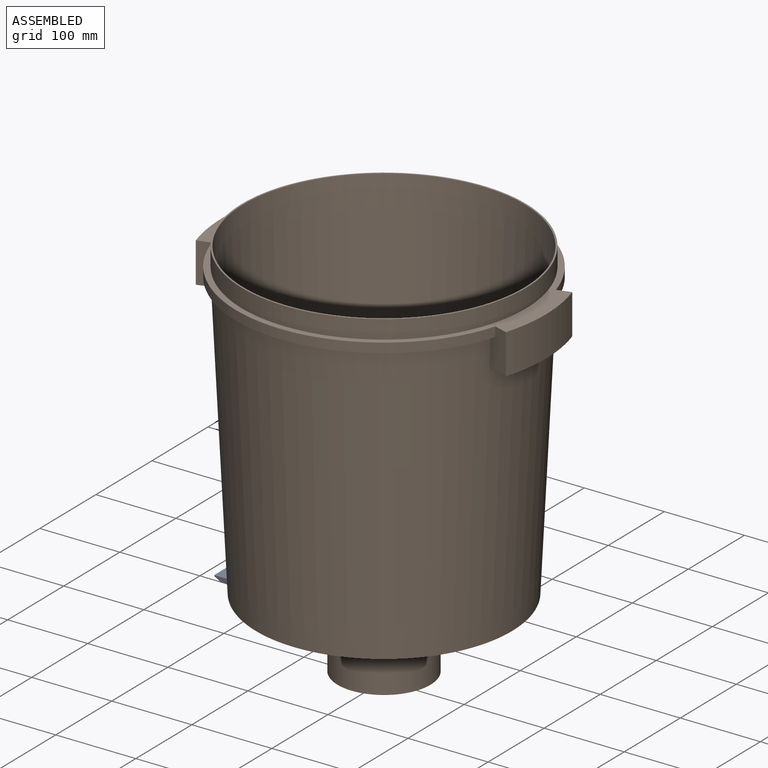
[diagram: assembled view]
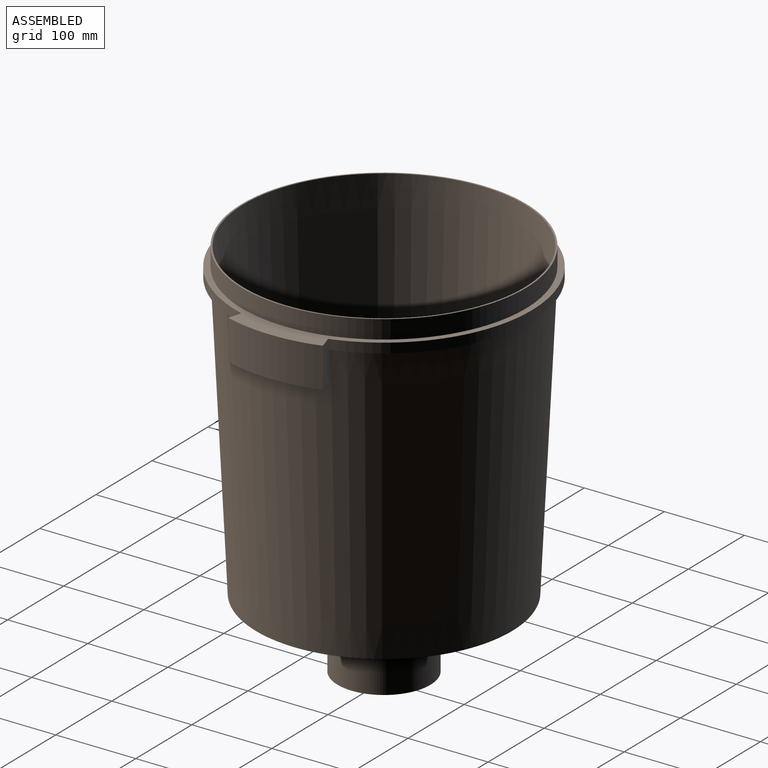
[diagram: assembled view, second angle]
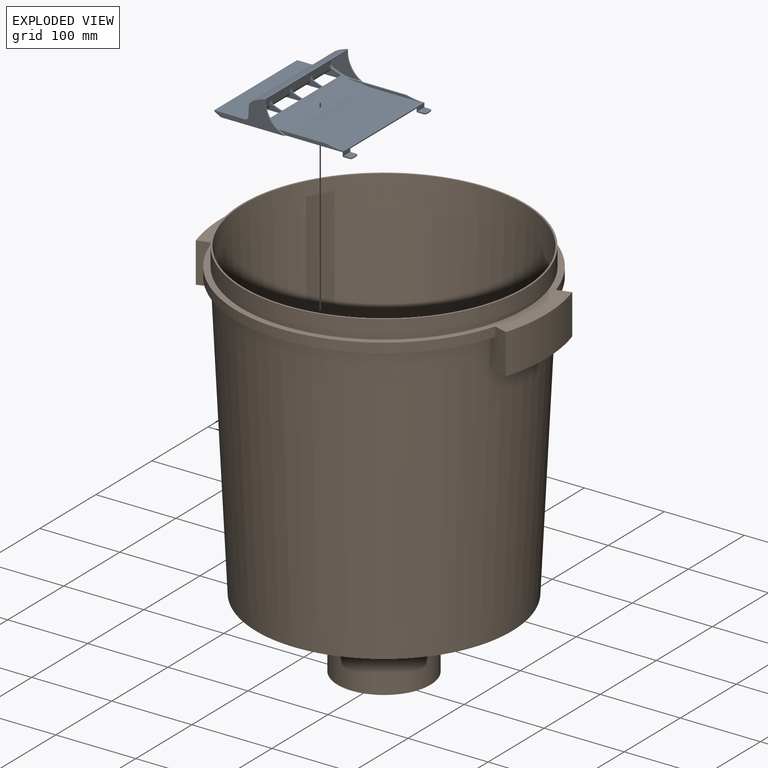
[diagram: exploded view]
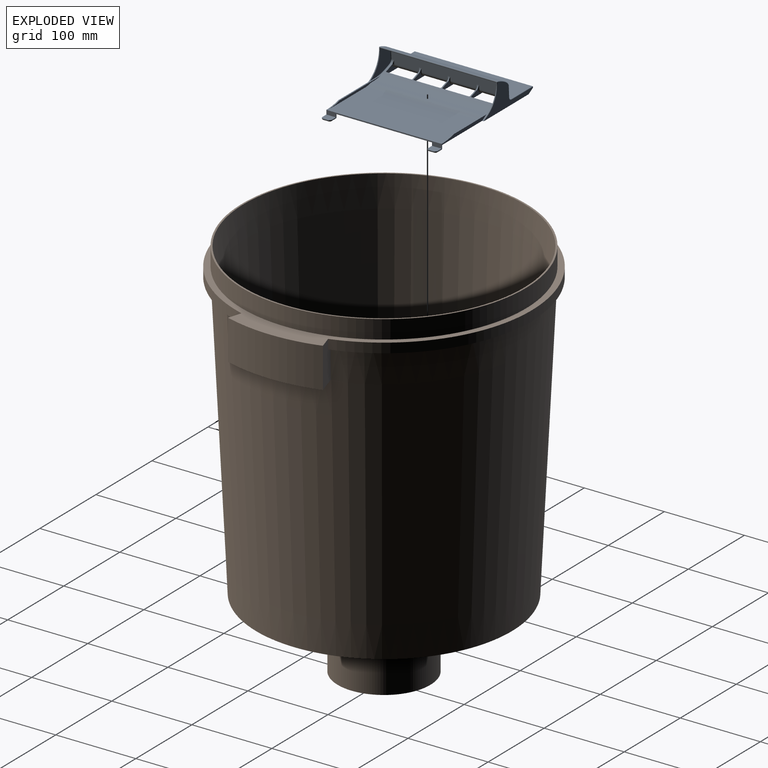
[diagram: exploded view, second angle]
FCSTD DOCUMENT  (FreeCAD 0.21R32532 (Git))
Label: composit_full_size2part_model
License: All rights reserved
LicenseURL: http://en.wikipedia.org/wiki/All_rights_reserved
objects: App::Link×31, Part::FeaturePython×10, Sketcher::SketchObject×6, PartDesign::CoordinateSystem×4, PartDesign::SubShapeBinder×4, PartDesign::Pocket×4, App::DocumentObjectGroup×3, PartDesign::Body×3, PartDesign::Pad×2, App::FeaturePython×1, Part::Feature×1, PartDesign::FeatureBase×1, PartDesign::PolarPattern×1, App::Part×1
note: 42 computed .brp shape members not serialized (recipe doc carries the construction recipe); baked Part::Feature solids carry a one-line shape summary decoded from their .brp
EXTERNAL_REF file=composit_full_size2part.FCStd obj=Local_CS011
EXTERNAL_REF file=composit_full_size2part.FCStd obj=Body
EXTERNAL_REF file=composit_full_size2part.FCStd obj=Local_CS012
EXTERNAL_REF file=composit_full_size2part.FCStd obj=Body001
EXTERNAL_REF file=composit_full_size2part.FCStd obj=DatumPoint005
EXTERNAL_REF file=composit_full_size2part.FCStd obj=Local_CS066
EXTERNAL_REF file=composit_full_size2part.FCStd obj=Body020
EXTERNAL_REF file=basin_big.FCStd obj=Body_7
EXTERNAL_REF file=composit_full_size2part.FCStd obj=Body022
EXTERNAL_REF file=composit_full_size2part.FCStd obj=Local_CS051
EXTERNAL_REF file=composit_full_size2part.FCStd obj=Body019
EXTERNAL_REF file=composit_full_size2part.FCStd obj=Local_CS050
EXTERNAL_REF file=composit_full_size2part.FCStd obj=Local_CS052
EXTERNAL_REF file=composit_full_size2part.FCStd obj=basement_plywood
EXTERNAL_REF file=composit_full_size2part.FCStd obj=LCS_0
EXTERNAL_REF file=hub2108.FCStd obj=Local_CS001
EXTERNAL_REF file=hub2108.FCStd obj=Body
EXTERNAL_REF file=composit_full_size2part.FCStd obj=Local_CS068
EXTERNAL_REF file=hub2108.FCStd obj=Local_CS
EXTERNAL_REF file=composit_full_size2part.FCStd obj=Body042
EXTERNAL_REF file=composit_full_size2part.FCStd obj=Local_CS054
EXTERNAL_REF file=composit_full_size2part.FCStd obj=Local_CS067
EXTERNAL_REF file=composit_full_size2part.FCStd obj=Body028
EXTERNAL_REF file=composit_full_size2part.FCStd obj=Local_CS055
EXTERNAL_REF file=composit_full_size2part.FCStd obj=Local_CS069
EXTERNAL_REF file=composit_full_size2part.FCStd obj=Body029
EXTERNAL_REF file=composit_full_size2part.FCStd obj=Local_CS058
EXTERNAL_REF file=composit_full_size2part.FCStd obj=Local_CS059
EXTERNAL_REF file=composit_full_size2part.FCStd obj=Body034
EXTERNAL_REF file=composit_full_size2part.FCStd obj=Local_CS001
EXTERNAL_REF file=composit_full_size2part.FCStd obj=Local_CS064
EXTERNAL_REF file=composit_full_size2part.FCStd obj=Body041
EXTERNAL_REF file=composit_full_size2part.FCStd obj=Local_CS060
EXTERNAL_REF file=composit_full_size2part.FCStd obj=Local_CS061
EXTERNAL_REF file=composit_full_size2part.FCStd obj=Body033
EXTERNAL_REF file=composit_full_size2part.FCStd obj=Body045
EXTERNAL_REF file=composit_full_size2part.FCStd obj=Body048
EXTERNAL_REF file=composit_full_size2part.FCStd obj=Local_CS070
EXTERNAL_REF file=composit_full_size2part.FCStd obj=Part002
EXTERNAL_REF file=composit_full_size2part.FCStd obj=LCS_024
EXTERNAL_REF file=composit_full_size2part.FCStd obj=plexiglasss_shield
EXTERNAL_REF file=composit_full_size2part.FCStd obj=Local_CS005
EXTERNAL_REF file=ugol90degX40mm.FCStd obj=Local_CS
EXTERNAL_REF file=ugol90degX40mm.FCStd obj=Body
EXTERNAL_REF file=../Ручка-профиль CT2 L60.FCStd obj=Local_CS
EXTERNAL_REF file=../Ручка-профиль CT2 L60.FCStd obj=Body
EXTERNAL_REF file=composit_full_size2part.FCStd obj=Body049
EXTERNAL_REF file=composit_full_size2part.FCStd obj=Body043
EXTERNAL_REF file=composit_full_size2part.FCStd obj=Body026
EXTERNAL_REF file=composit_full_size2part.FCStd obj=Body050
EXTERNAL_REF file=composit_full_size2part.FCStd obj=Body051
EXTERNAL_REF file=composit_full_size2part.FCStd obj=Body054
EXTERNAL_REF file=composit_full_size2part_transport.FCStd obj=Body001
EXTERNAL_REF file=composit_full_size2part_transport.FCStd obj=Body
EXTERNAL_REF file=composit_full_size2part.FCStd obj=Local_CS073
EXTERNAL_REF file=composit_full_size2part.FCStd obj=Body058

FEATURE [PartDesign::CoordinateSystem] LCS_Origin
  AttacherType = Attacher::AttachEngine3D
  MapMode = 2
  Support = -> [X_Axis]
FEATURE [App::DocumentObjectGroup] Constraints
FEATURE [App::FeaturePython] Variables  # WARN: FeaturePython — macro-defined, semantics opaque (R4)
  Type = App::PropertyContainer
FEATURE [App::DocumentObjectGroup] Configurations
FEATURE [App::Link] Body_material_0_30ansi  label="Body_material_0.30ansi"
  AssemblyType = Part::Link
  AttachedBy = #Local_CS011
  AttachedTo = Parent Assembly#LCS_Origin
  LinkPlacement = pos=(0,8.37158,0) rot=(0,0,1;0rad)
  LinkedObject = -> <external composit_full_size2part.FCStd>#Body
  Placement = pos=(0,8.37158,0) rot=(0,0,1;0rad)
  SolverId = Asm4EE
  expr: Placement = LCS_Origin.Placement * AttachmentOffset * composit_full_size2part#Local_CS011.Placement ^ -1
FEATURE [App::Link] Body001_material_0_30ansi  label="Body001_material_0.30ansi"
  AssemblyType = Part::Link
  AttachedBy = #Local_CS012
  AttachedTo = Parent Assembly#LCS_Origin
  AttachmentOffset = pos=(0,0,0) rot=(0,0,1;4.18879rad)
  LinkPlacement = pos=(7.25,-4.18579,0) rot=(0,0,1;4.18879rad)
  LinkedObject = -> <external composit_full_size2part.FCStd>#Body001
  Placement = pos=(7.25,-4.18579,0) rot=(0,0,1;4.18879rad)
  SolverId = Asm4EE
  expr: Placement = LCS_Origin.Placement * AttachmentOffset * composit_full_size2part#Local_CS012.Placement ^ -1
FEATURE [App::Link] hor_amplifier
  AssemblyType = Part::Link
  AttachedBy = #Local_CS066
  AttachedTo = Body_material_0_30ansi#DatumPoint005
  AttachmentOffset = pos=(0,0,0) rot=(1,0,0;4.71239rad)
  LinkPlacement = pos=(1.7e-15,201.803,407.176) rot=(1,0,0;3.19975rad)
  LinkedObject = -> <external composit_full_size2part.FCStd>#Body020
  Placement = pos=(1.7e-15,201.803,407.176) rot=(1,0,0;3.19975rad)
  SolverId = Asm4EE
  expr: Placement = Body_material_0_30ansi.Placement * composit_full_size2part#DatumPoint005.Placement * AttachmentOffset * composit_full_size2part#Local_CS066.Placement ^ -1
FEATURE [PartDesign::CoordinateSystem] Local_CS044
  AttacherType = Attacher::AttachEngine3D
  MapMode = 4
  Placement = pos=(0,0,0) rot=(0.57735,0.57735,0.57735;2.0944rad)
  Support = -> [XY_Plane044]
FEATURE [Part::Feature] Part__Feature  label="module002"
  shape: bbox 170 x 148 x 41.12 mm, 715 faces (baked)
FEATURE [PartDesign::FeatureBase] BaseFeature
  BaseFeature = -> Part__Feature
FEATURE [PartDesign::Body] Body017
  BaseFeature = -> Part__Feature
  Group = -> [BaseFeature,Local_CS044]
  Origin = -> Origin044
  Tip = -> BaseFeature
FEATURE [App::DocumentObjectGroup] Parts
  Group = -> [Body017,Part__Feature]
FEATURE [App::Link] Body024_material_0_30ansi  label="Body024_material_0.30ansi"
  AssemblyType = Part::Link
  AttachedBy = #Local_CS049
  AttachedTo = Parent Assembly#LCS_Origin
  AttachmentOffset = pos=(0,0,3) rot=(0,0,1;-1.0472rad)
  LinkPlacement = pos=(0,0,3) rot=(0,0,1;5.23599rad)
  Placement = pos=(0,0,3) rot=(0,0,1;5.23599rad)
  SolverId = Asm4EE
  expr: Placement = LCS_Origin.Placement * AttachmentOffset * composit_full_size2part#Local_CS049.Placement ^ -1
FEATURE [App::Link] basin
  AssemblyType = Part::Link
  AttachedBy = #LCS_021
  AttachedTo = Parent Assembly#LCS_Origin
  LinkedObject = -> <external basin_big.FCStd>#Body_7
  SolverId = Asm4EE
  expr: LinkedObject = <<basin_big>>#<<basin>>._self
FEATURE [App::Link] basin_limiter_body
  LinkPlacement = pos=(0,0,0) rot=(0,0,1;2.0944rad)
  LinkedObject = -> <external composit_full_size2part.FCStd>#Body022
  Placement = pos=(0,0,0) rot=(0,0,1;2.0944rad)
FEATURE [App::Link] basement_proxy
  AssemblyType = Part::Link
  AttachedBy = #Local_CS051
  AttachedTo = Parent Assembly#LCS_Origin
  AttachmentOffset = pos=(0,0,0) rot=(0,0,1;-3.14159rad)
  LinkPlacement = pos=(0,0,-3) rot=(0,0,1;3.14159rad)
  LinkedObject = -> <external composit_full_size2part.FCStd>#Body019
  Placement = pos=(0,0,-3) rot=(0,0,1;3.14159rad)
  SolverId = Asm4EE
  expr: Placement = LCS_Origin.Placement * AttachmentOffset * composit_full_size2part#Local_CS051.Placement ^ -1
FEATURE [App::Link] basement_plywood
  AssemblyType = Part::Link
  AttachedBy = #Local_CS052
  AttachedTo = basement_proxy#Local_CS050
  AttachmentOffset = pos=(0,0,0) rot=(0,0,1;2.0944rad)
  LinkPlacement = pos=(0,0,-21) rot=(0,0,1;5.23599rad)
  LinkedObject = -> <external composit_full_size2part.FCStd>#basement_plywood
  Placement = pos=(0,0,-21) rot=(0,0,1;5.23599rad)
  SolverId = Asm4EE
  expr: Placement = basement_proxy.Placement * composit_full_size2part#Local_CS050.Placement * AttachmentOffset * composit_full_size2part#Local_CS052.Placement ^ -1
FEATURE [App::Link] hub2108
  AssemblyType = Part::Link
  AttachedBy = #Local_CS001
  AttachedTo = basement_plywood#LCS_0
  LinkPlacement = pos=(0,0,-88) rot=(0,0,1;5.23599rad)
  LinkedObject = -> <external hub2108.FCStd>#Body
  Placement = pos=(0,0,-88) rot=(0,0,1;5.23599rad)
  SolverId = Asm4EE
  expr: Placement = basement_plywood.Placement * composit_full_size2part#LCS_0.Placement * AttachmentOffset * hub2108#Local_CS001.Placement ^ -1
FEATURE [App::Link] basement2_proxy
  AssemblyType = Part::Link
  AttachedBy = #Local_CS068
  AttachedTo = hub2108#Local_CS
  AttachmentOffset = pos=(0,0,0) rot=(0,0,1;1.0472rad)
  LinkPlacement = pos=(0,0,-91) rot=(0,0,1;0rad)
  LinkedObject = -> <external composit_full_size2part.FCStd>#Body042
  Placement = pos=(0,0,-91) rot=(0,0,1;0rad)
  SolverId = Asm4EE
  expr: Placement = hub2108.Placement * hub2108#Local_CS.Placement * AttachmentOffset * composit_full_size2part#Local_CS068.Placement ^ -1
FEATURE [App::Link] plywood_basement_2
  AssemblyType = Part::Link
  AttachedBy = #Local_CS054
  AttachedTo = basement2_proxy#Local_CS067
  LinkPlacement = pos=(0,0,-109) rot=(0,0,1;0rad)
  LinkedObject = -> <external composit_full_size2part.FCStd>#Body028
  Placement = pos=(0,0,-109) rot=(0,0,1;0rad)
  SolverId = Asm4EE
  expr: Placement = basement2_proxy.Placement * composit_full_size2part#Local_CS067.Placement * AttachmentOffset * composit_full_size2part#Local_CS054.Placement ^ -1
FEATURE [App::Link] pillar_material_0_30ansi  label="pillar_material_0.30ansi"
  AssemblyType = Part::Link
  AttachedBy = #Local_CS055
  AttachedTo = basement2_proxy#Local_CS069
  LinkPlacement = pos=(1.705e-13,384,-88) rot=(0,0,1;0rad)
  LinkedObject = -> <external composit_full_size2part.FCStd>#Body029
  Placement = pos=(1.705e-13,384,-88) rot=(0,0,1;0rad)
  SolverId = Asm4EE
  expr: Placement = basement2_proxy.Placement * composit_full_size2part#Local_CS069.Placement * AttachmentOffset * composit_full_size2part#Local_CS055.Placement ^ -1
FEATURE [App::Link] pillar_corner_bottom_material_0_30ansi  label="pillar_corner_bottom_material_0.30ansi"
  AssemblyType = Part::Link
  AttachedBy = #Local_CS058
  AttachedTo = pillar_material_0_30ansi#Local_CS059
  LinkPlacement = pos=(18.3,329.5,-88) rot=(0,0,1;1.5708rad)
  LinkedObject = -> <external composit_full_size2part.FCStd>#Body034
  Placement = pos=(18.3,329.5,-88) rot=(0,0,1;1.5708rad)
  SolverId = Asm4EE
  expr: Placement = pillar_material_0_30ansi.Placement * composit_full_size2part#Local_CS059.Placement * AttachmentOffset * composit_full_size2part#Local_CS058.Placement ^ -1
FEATURE [App::Link] Part
  AssemblyType = Part::Link
  AttachedBy = #Local_CS028
  AttachedTo = Body_material_0_30ansi#Local_CS001
  AttachmentOffset = pos=(0,0,3) rot=(0,0,1;3.14159rad)
  LinkPlacement = pos=(0,181.372,1431) rot=(0,0,1;3.14159rad)
  Placement = pos=(0,181.372,1431) rot=(0,0,1;3.14159rad)
  SolverId = Asm4EE
  expr: Placement = Body_material_0_30ansi.Placement * composit_full_size2part#Local_CS001.Placement * AttachmentOffset * composit_full_size2part#Local_CS028.Placement ^ -1
FEATURE [Part::FeaturePython] Circular_Part  # Draft array (typed FeaturePython)
  AngleStep = 120
  ArrayType = Circular Array
  Axis = -> Z_Axis
  Count = 3
  Index = 1
  PlacementList = 3 placements: [(-1.00974e-28,181.372,1431),(-157.072,-90.6858,1431),(157.072,-90.6858,1431)]
  Placer = pos=(0,0,0) rot=(0,0,1;4.18879rad)
  ScaleList = (3) [(1,1,1),(1,1,1),(1,1,1)]
  Scaler = 1
  ShowElement = false
  SourceObject = -> Part
  expr: .Placer.Rotation.Angle = AngleStep * Index
  expr: AngleStep = 360 / Count
FEATURE [App::Link] Body041_material_0_30ansi  label="Body041_material_0.30ansi"
  AssemblyType = Part::Link
  AttachedBy = #Local_CS064
  AttachedTo = basement2_proxy#Local_CS069
  AttachmentOffset = pos=(0,16.7,514) rot=(0,0,1;4.71239rad)
  LinkPlacement = pos=(1.611e-13,367.3,426) rot=(1,0,0;1.5708rad)
  LinkedObject = -> <external composit_full_size2part.FCStd>#Body041
  Placement = pos=(1.611e-13,367.3,426) rot=(1,0,0;1.5708rad)
  SolverId = Asm4EE
  expr: Placement = basement2_proxy.Placement * composit_full_size2part#Local_CS069.Placement * AttachmentOffset * composit_full_size2part#Local_CS064.Placement ^ -1
FEATURE [App::Link] pillar_corner_top_material_0_30ansi  label="pillar_corner_top_material_0.30ansi"
  AssemblyType = Part::Link
  AttachedBy = #Local_CS061
  AttachedTo = pillar_material_0_30ansi#Local_CS060
  LinkPlacement = pos=(1.696e-13,382,1506) rot=(0,0,1;0rad)
  LinkedObject = -> <external composit_full_size2part.FCStd>#Body033
  Placement = pos=(1.696e-13,382,1506) rot=(0,0,1;0rad)
  SolverId = Asm4EE
  expr: Placement = pillar_material_0_30ansi.Placement * composit_full_size2part#Local_CS060.Placement * AttachmentOffset * composit_full_size2part#Local_CS061.Placement ^ -1
FEATURE [Part::FeaturePython] Circular_pillar_material_0_30ansi  label="Circular_pillar_material_0.30ansi"  # Draft array (typed FeaturePython)
  AngleStep = 120
  ArrayType = Circular Array
  Axis = -> Z_Axis
  Count = 3
  Index = 1
  PlacementList = 3 placements: [(1.7053e-13,384,-88),(-332.554,-192,-88),(332.554,-192,-88)]
  Placer = pos=(0,0,0) rot=(0,0,1;4.18879rad)
  ScaleList = (3) [(1,1,1),(1,1,1),(1,1,1)]
  Scaler = 1
  ShowElement = false
  SourceObject = -> pillar_material_0_30ansi
  expr: .Placer.Rotation.Angle = AngleStep * Index
  expr: AngleStep = 360 / Count
FEATURE [Part::FeaturePython] Circular_pillar_corner_bottom_material_0_30ansi  label="Circular_pillar_corner_bottom_material_0.30ansi"  # Draft array (typed FeaturePython)
  AngleStep = 120
  ArrayType = Circular Array
  Axis = -> Z_Axis
  Count = 3
  Index = 1
  PlacementList = 3 placements: [(18.3,329.5,-88),(-294.505,-148.902,-88),(276.205,-180.598,-88)]
  Placer = pos=(0,0,0) rot=(0,0,1;4.18879rad)
  ScaleList = (3) [(1,1,1),(1,1,1),(1,1,1)]
  Scaler = 1
  ShowElement = false
  SourceObject = -> pillar_corner_bottom_material_0_30ansi
  expr: .Placer.Rotation.Angle = AngleStep * Index
  expr: AngleStep = 360 / Count
FEATURE [Part::FeaturePython] Circular_Body041_material_0_30ansi  label="Circular_Body041_material_0.30ansi"  # Draft array (typed FeaturePython)
  AngleStep = 120
  ArrayType = Circular Array
  Axis = -> Z_Axis
  Count = 3
  Index = 1
  PlacementList = 3 placements: [(1.61069e-13,367.3,426),(-318.091,-183.65,426),(318.091,-183.65,426)]
  Placer = pos=(0,0,0) rot=(0,0,1;4.18879rad)
  ScaleList = (3) [(1,1,1),(1,1,1),(1,1,1)]
  Scaler = 1
  ShowElement = false
  SourceObject = -> Body041_material_0_30ansi
  expr: .Placer.Rotation.Angle = AngleStep * Index
  expr: AngleStep = 360 / Count
FEATURE [Part::FeaturePython] Circular_pillar_corner_top_material_0_30ansi  label="Circular_pillar_corner_top_material_0.30ansi"  # Draft array (typed FeaturePython)
  AngleStep = 120
  ArrayType = Circular Array
  Axis = -> Z_Axis
  Count = 3
  Index = 1
  PlacementList = 3 placements: [(1.69642e-13,382,1506),(-330.822,-191,1506),(330.822,-191,1506)]
  Placer = pos=(0,0,0) rot=(0,0,1;4.18879rad)
  ScaleList = (3) [(1,1,1),(1,1,1),(1,1,1)]
  Scaler = 1
  ShowElement = false
  SourceObject = -> pillar_corner_top_material_0_30ansi
  expr: .Placer.Rotation.Angle = AngleStep * Index
  expr: AngleStep = 360 / Count
FEATURE [App::Link] Body045_material_0_30ansi  label="Body045_material_0.30ansi"
  LinkPlacement = pos=(0,0,1503) rot=(0,0,1;0rad)
  LinkedObject = -> <external composit_full_size2part.FCStd>#Body045
  Placement = pos=(0,0,1503) rot=(0,0,1;0rad)
FEATURE [App::Link] plexiglass_shield
  LinkPlacement = pos=(0,0,383) rot=(0,0,1;0rad)
  LinkedObject = -> <external composit_full_size2part.FCStd>#Body048
  Placement = pos=(0,0,383) rot=(0,0,1;0rad)
FEATURE [App::Link] Part002
  AssemblyType = Part::Link
  AttachedBy = #Local_CS041
  AttachedTo = Body_material_0_30ansi#Local_CS070
  AttachmentOffset = pos=(0,0,0) rot=(0,0,1;1.5708rad)
  LinkPlacement = pos=(14.5,8.37158,410) rot=(0,0,-1;1.0472rad)
  LinkedObject = -> <external composit_full_size2part.FCStd>#Part002
  Placement = pos=(14.5,8.37158,410) rot=(0,0,-1;1.0472rad)
  SolverId = Asm4EE
  expr: Placement = Body_material_0_30ansi.Placement * composit_full_size2part#Local_CS070.Placement * AttachmentOffset ^ -1
FEATURE [Sketcher::SketchObject] Sketch
  FullyConstrained = true
  sketch-geometry (1):
    g0: Circle CenterX=0 CenterY=0 CenterZ=0 NormalX=0 NormalY=0 NormalZ=1 AngleXU=0 Radius=385
  constraints (2):
    c: Coincident(g0,g-1)
    c: Radius(g0) = 385
FEATURE [App::Link] plexiglasss_bottom_shield_material_0_30ansi  label="plexiglasss_bottom_shield_material_0.30ansi"
  AssemblyType = Part::Link
  AttachedBy = #LCS_024
  AttachedTo = Parent Assembly#LCS_Origin
  AttachmentOffset = pos=(0,0,0) rot=(0,0,1;1.0472rad)
  LinkPlacement = pos=(0,0,0) rot=(0,0,1;1.0472rad)
  LinkedObject = -> <external composit_full_size2part.FCStd>#plexiglasss_shield
  Placement = pos=(0,0,0) rot=(0,0,1;1.0472rad)
  SolverId = Asm4EE
  expr: Placement = LCS_Origin.Placement * AttachmentOffset * composit_full_size2part#LCS_024.Placement ^ -1
FEATURE [Part::FeaturePython] Circular_Part002  # Draft array (typed FeaturePython)
  AngleStep = 120
  ArrayType = Circular Array
  Axis = -> Z_Axis
  Count = 3
  Index = 1
  PlacementList = 3 placements: [(14.5,8.37158,410),(-14.5,8.37158,410),(-4.36096e-13,-16.7432,410)]
  Placer = pos=(0,0,0) rot=(0,0,1;4.18879rad)
  ScaleList = (3) [(1,1,1),(1,1,1),(1,1,1)]
  Scaler = 1
  ShowElement = false
  SourceObject = -> Part002
  expr: .Placer.Rotation.Angle = AngleStep * Index
  expr: AngleStep = 360 / Count
FEATURE [Part::FeaturePython] Circular_plexiglasss_bottom_shield_material_0_30ansi  label="Circular_plexiglasss_bottom_shield_material_0.30ansi"  # Draft array (typed FeaturePython)
  AngleStep = 120
  ArrayType = Circular Array
  Axis = -> Z_Axis
  Count = 2
  Index = 1
  PlacementList = 2 placements: [(0,0,0),(0,0,0)]
  Placer = pos=(0,0,0) rot=(0,0,1;2.0944rad)
  ScaleList = (2) [(1,1,1),(1,1,1)]
  Scaler = 1
  ShowElement = false
  SourceObject = -> plexiglasss_bottom_shield_material_0_30ansi
  expr: .Placer.Rotation.Angle = AngleStep * Index
  expr: AngleStep = 240 / Count
FEATURE [App::Link] Body_material_0_30ansi001  label="Body_material_0.30ansi001"
  AssemblyType = Part::Link
  AttachedBy = #Local_CS
  AttachedTo = Body_material_0_30ansi#Local_CS005
  AttachmentOffset = pos=(0,0,0) rot=(0,0,1;3.14159rad)
  LinkPlacement = pos=(14.5,294.372,0) rot=(0,0,-1;4.71239rad)
  LinkedObject = -> <external ugol90degX40mm.FCStd>#Body
  Placement = pos=(14.5,294.372,0) rot=(0,0,-1;4.71239rad)
  SolverId = Asm4EE
  expr: Placement = Body_material_0_30ansi.Placement * composit_full_size2part#Local_CS005.Placement * AttachmentOffset * ugol90degX40mm#Local_CS.Placement ^ -1
FEATURE [Part::FeaturePython] Mirror_Body_material_0_30ansi001  label="Mirror_Body_material_0.30ansi001"  # Draft array (typed FeaturePython)
  ArrayType = Mirror Array
  Axis = -> YZ_Plane
  AxisPlacement = pos=(0,0,0) rot=(1,1,1;2.0944rad)
  Count = 2
  Index = 1
  PlacementList = 2 placements: [(14.5,294.372,-3.54987e-30),(-14.5,294.372,-4.82947e-15)]
  Placer = pos=(588.743,2.79e-14,-29) rot=(0,0,1;3.14159rad)
  ScaleList = (2) [(1,1,1),(-1,-1,-1)]
  Scaler = -1
  ShowElement = false
  SourceObject = -> Body_material_0_30ansi001
  expr: .Placer.Base = .Placer.Rotation * minvert(.AxisPlacement) * .SourceObject.Placement.Base * -2 * (Index % 2)
  expr: .Placer.Rotation.Angle = 180 * (Index % 2)
  expr: Scaler = 1 - 2 * (Index % 2)
FEATURE [Part::FeaturePython] Circular_Mirror_Body_material_0_30ansi001  label="Circular_Mirror_Body_material_0.30ansi001"  # Draft array (typed FeaturePython)
  AngleStep = 120
  ArrayType = Circular Array
  Axis = -> Z_Axis
  Count = 3
  Index = 1
  PlacementList = 3 placements: [(0,0,0),(0,0,0),(0,0,0)]
  Placer = pos=(0,0,0) rot=(0,0,1;4.18879rad)
  ScaleList = (3) [(1,1,1),(1,1,1),(1,1,1)]
  Scaler = 1
  ShowElement = false
  SourceObject = -> Mirror_Body_material_0_30ansi001
  expr: .Placer.Rotation.Angle = AngleStep * Index
  expr: AngleStep = 360 / Count
FEATURE [App::Link] Body  label="handle"
  AssemblyType = Part::Link
  AttachedBy = #Local_CS
  AttachedTo = Body024_material_0_30ansi#Local_CS071
  AttachmentOffset = pos=(0,268,1.5) rot=(0,0,1;1.5708rad)
  LinkPlacement = pos=(294.41,-122.73,271) rot=(0.706137,0.052363,0.706137;3.24622rad)
  LinkedObject = -> <external ../Ручка-профиль CT2 L60.FCStd>#Body
  Placement = pos=(294.41,-122.73,271) rot=(0.706137,0.052363,0.706137;3.24622rad)
  SolverId = Asm4EE
  expr: .AttachmentOffset.Base.y = <<composit_full_size2part>>#Binder173.Placement.Base.z
  expr: Placement = Body024_material_0_30ansi.Placement * composit_full_size2part#Local_CS071.Placement * AttachmentOffset * __________________________CT2_L60#Local_CS.Placement ^ -1
FEATURE [App::Link] tech_plexiglass_shield_material_0_30ansi  label="tech_plexiglass_shield_material_0.30ansi"
  LinkPlacement = pos=(0,0,0) rot=(0,0,1;5.23599rad)
  LinkedObject = -> <external composit_full_size2part.FCStd>#Body049
  Placement = pos=(0,0,0) rot=(0,0,1;5.23599rad)
FEATURE [App::Link] tech_bottom_proxy
  LinkPlacement = pos=(0,0,0) rot=(0,0,1;5.23599rad)
  LinkedObject = -> <external composit_full_size2part.FCStd>#Body043
  Placement = pos=(0,0,0) rot=(0,0,1;5.23599rad)
FEATURE [App::Link] tech_bottom
  LinkPlacement = pos=(0,0,0) rot=(0,0,1;5.23599rad)
  LinkedObject = -> <external composit_full_size2part.FCStd>#Body026
  Placement = pos=(0,0,0) rot=(0,0,1;5.23599rad)
FEATURE [App::Link] Body050_material_0_30ansi  label="Body050_material_0.30ansi"
  AttachmentOffset = pos=(0,0,1600) rot=(0,0,1;0rad)
  LinkPlacement = pos=(0,0,1508) rot=(0,0,1;0rad)
  LinkedObject = -> <external composit_full_size2part.FCStd>#Body050
  Placement = pos=(0,0,1508) rot=(0,0,1;0rad)
FEATURE [Part::FeaturePython] Circular_Body024_material_0_30ansi  label="Circular_Body024_material_0.30ansi"  # Draft array (typed FeaturePython)
  AngleStep = 120
  ArrayType = Circular Array
  Axis = -> Z_Axis
  Count = 2
  Index = 1
  PlacementList = 2 placements: [(1.97215e-31,1.97215e-31,3),(-8.44624e-16,3.15218e-15,3)]
  Placer = pos=(0,0,0) rot=(0,0,1;2.0944rad)
  ScaleList = (2) [(1,1,1),(1,1,1)]
  Scaler = 1
  ShowElement = false
  SourceObject = -> Body024_material_0_30ansi
  expr: .Placer.Rotation.Angle = AngleStep * Index
  expr: AngleStep = 120 deg
FEATURE [App::Link] hat1_material_0_30ansi  label="hat1_material_0.30ansi"
  LinkPlacement = pos=(0,0,1585) rot=(0,0,1;0rad)
  LinkedObject = -> <external composit_full_size2part.FCStd>#Body051
  Placement = pos=(0,0,1585) rot=(0,0,1;0rad)
FEATURE [App::Link] Body051_material_0_30ansi  label="Body051_material_0.30ansi"
  LinkPlacement = pos=(0,0,1508) rot=(0,0,1;2.0944rad)
  LinkedObject = -> <external composit_full_size2part.FCStd>#Body054
  Placement = pos=(0,0,1508) rot=(0,0,1;2.0944rad)
FEATURE [App::Link] top
  LinkPlacement = pos=(0,0,1600) rot=(0,0,1;0rad)
  LinkedObject = -> <external composit_full_size2part_transport.FCStd>#Body001
  Placement = pos=(0,0,1600) rot=(0,0,1;0rad)
FEATURE [App::Link] bottom
  LinkPlacement = pos=(0,0,-159) rot=(0,0,1;0rad)
  LinkedObject = -> <external composit_full_size2part_transport.FCStd>#Body
  Placement = pos=(0,0,-159) rot=(0,0,1;0rad)
FEATURE [App::Link] Body058
  AttachedBy = #Local_CS073
  AttachedTo = basement2_proxy#Local_CS069
  AttachmentOffset = pos=(0,0,471) rot=(0,0,1;3.14159rad)
  LinkPlacement = pos=(1.705e-13,384,383) rot=(0,0,1;0rad)
  LinkedObject = -> <external composit_full_size2part.FCStd>#Body058
  Placement = pos=(1.705e-13,384,383) rot=(0,0,1;0rad)
  SolverId = Asm4EE
  expr: Placement = basement2_proxy.Placement * composit_full_size2part#Local_CS069.Placement * AttachmentOffset * composit_full_size2part#Local_CS073.Placement ^ -1
FEATURE [PartDesign::CoordinateSystem] LCS_0
  AttacherType = Attacher::AttachEngine3D
  MapMode = 2
  Support = -> [X_Axis045]
FEATURE [PartDesign::SubShapeBinder] Binder
  BindCopyOnChange = 0
  BindMode = 0
  ClaimChildren = false
  Context = -> Model [top001.Binder.]
  Fuse = false
  MakeFace = true
  OffsetFill = false
  OffsetIntersection = false
  OffsetJoinType = 0
  OffsetOpenResult = false
  PartialLoad = false
  Placement = pos=(0,0,100) rot=(0,0,1;0rad)
  Relative = true
  Support = -> [Circular_Part[0.Part_2.top_bottom_part.Pocket082.Face5]]
  _Version = 2
FEATURE [Sketcher::SketchObject] Sketch001
  AttachmentOffset = pos=(0,0,100) rot=(0,0,1;0rad)
  ExternalGeometry = -> [Binder]
  FullyConstrained = true
  MapMode = 5
  Placement = pos=(0,0,100) rot=(0,0,1;0rad)
  Support = -> [XY_Plane045]
  sketch-geometry (5):
    g0: LineSegment StartX=44.1 StartY=313.322 StartZ=0 EndX=-44.1 EndY=313.322 EndZ=0
    g1: LineSegment StartX=-44.1 StartY=313.322 StartZ=0 EndX=-44.1 EndY=320.176 EndZ=0
    g2: LineSegment StartX=-44.1 StartY=320.176 StartZ=0 EndX=44.1 EndY=320.176 EndZ=0
    g3: LineSegment StartX=44.1 StartY=320.176 StartZ=0 EndX=44.1 EndY=313.322 EndZ=0
    g4: GeomPoint X=0 Y=316.749 Z=0
  constraints (13):
    c: Coincident(g0,g1)
    c: Coincident(g1,g2)
    c: Coincident(g2,g3)
    c: Coincident(g3,g0)
    c: Horizontal(g0)
    c: Horizontal(g2)
    c: Vertical(g1)
    c: Vertical(g3)
    c: PointOnObject(g4,g-2)
    c: Symmetric(g0,g2,g4)
    c: DistanceY(g-4,g0) = 5
    c: DistanceX(g-5,g0) = 5
    c: DistanceY(g-3,g2) = 5
FEATURE [Sketcher::SketchObject] Sketch002
  ExternalGeometry = -> [Sketch001]
  FullyConstrained = true
  MapMode = 5
  Support = -> [XY_Plane045]
FEATURE [Sketcher::SketchObject] Sketch003
  AttachmentOffset = pos=(0,0,100) rot=(0,0,1;0rad)
  ExternalGeometry = -> [Sketch001]
  FullyConstrained = true
  MapMode = 5
  Placement = pos=(0,0,100) rot=(0,0,1;0rad)
  Support = -> [XY_Plane045]
  sketch-geometry (5):
    g0: LineSegment StartX=-44.1 StartY=0 StartZ=0 EndX=-44.1 EndY=313.322 EndZ=0
    g1: LineSegment StartX=-44.1 StartY=313.322 StartZ=0 EndX=44.1 EndY=313.322 EndZ=0
    g2: LineSegment StartX=44.1 StartY=313.322 StartZ=0 EndX=44.1 EndY=0 EndZ=0
    g3: LineSegment StartX=44.1 StartY=0 StartZ=0 EndX=-44.1 EndY=0 EndZ=0
    g4: GeomPoint X=-6.59e-14 Y=156.661 Z=0
  constraints (12):
    c: Coincident(g0,g1)
    c: Coincident(g1,g2)
    c: Coincident(g2,g3)
    c: Coincident(g3,g0)
    c: Horizontal(g1)
    c: Horizontal(g3)
    c: Vertical(g0)
    c: Vertical(g2)
    c: Symmetric(g1,g0,g4)
    c: PointOnObject(g4,g-2)
    c: Coincident(g1,g-3)
    c: PointOnObject(g2,g-1)
FEATURE [PartDesign::CoordinateSystem] LCS_001
  AttacherType = Attacher::AttachEngine3D
  MapMode = 2
  Support = -> [X_Axis046]
FEATURE [PartDesign::SubShapeBinder] Binder001
  BindCopyOnChange = 0
  BindMode = 0
  ClaimChildren = false
  Context = -> Model [bottom001.Binder001.]
  Fuse = false
  MakeFace = true
  Offset = 10
  OffsetFill = false
  OffsetIntersection = false
  OffsetJoinType = 0
  OffsetOpenResult = false
  PartialLoad = false
  Placement = pos=(0,0,100) rot=(0,0,1;1.0472rad)
  Relative = false
  Support = -> [basement_proxy[Binder094.Populate005.]]
  _Version = 2
FEATURE [Sketcher::SketchObject] Sketch004
  ExternalGeometry = -> [Binder001]
  FullyConstrained = true
  MapMode = 5
  Support = -> [XY_Plane046]
  sketch-geometry (15):
    g0: LineSegment StartX=-116.703 StartY=393.865 StartZ=0 EndX=-399.448 EndY=-95.8649 EndZ=0
    g1: LineSegment StartX=-282.746 StartY=-298 StartZ=0 EndX=282.746 EndY=-298 EndZ=0
    g2: LineSegment StartX=399.448 StartY=-95.8649 StartZ=0 EndX=116.703 EndY=393.865 EndZ=0
    g3: LineSegment StartX=-116.703 StartY=393.865 StartZ=0 EndX=116.703 EndY=393.865 EndZ=0
    g4: LineSegment StartX=399.448 StartY=-95.8649 StartZ=0 EndX=282.746 EndY=-298 EndZ=0
    g5: LineSegment StartX=-282.746 StartY=-298 StartZ=0 EndX=-399.448 EndY=-95.8649 EndZ=0
    g6: LineSegment StartX=-399.448 StartY=-95.8649 StartZ=0 EndX=-516.151 EndY=-298 EndZ=0
    g7: LineSegment StartX=-516.151 StartY=-298 StartZ=0 EndX=-282.746 EndY=-298 EndZ=0
    g8: LineSegment StartX=282.746 StartY=-298 StartZ=0 EndX=516.151 EndY=-298 EndZ=0
    g9: LineSegment StartX=516.151 StartY=-298 StartZ=0 EndX=399.448 EndY=-95.8649 EndZ=0
    g10: LineSegment StartX=116.703 StartY=393.865 StartZ=0 EndX=4.832e-13 EndY=596 EndZ=0
    g11: LineSegment StartX=4.832e-13 StartY=596 StartZ=0 EndX=-116.703 EndY=393.865 EndZ=0
    g12: LineSegment StartX=-516.151 StartY=-298 StartZ=0 EndX=-4.547e-13 EndY=-7.958e-13 EndZ=0
    g13: LineSegment StartX=4.832e-13 StartY=596 StartZ=0 EndX=-4.547e-13 EndY=-7.958e-13 EndZ=0
    g14: LineSegment StartX=-4.547e-13 StartY=-7.958e-13 StartZ=0 EndX=516.151 EndY=-298 EndZ=0
  constraints (39):
    c: Horizontal(g1)
    c: Horizontal(g3)
    c: Coincident(g2,g3)
    c: Coincident(g0,g3)
    c: Coincident(g1,g4)
    c: Coincident(g2,g4)
    c: Coincident(g1,g5)
    c: Coincident(g0,g5)
    c: Equal(g1,g2)
    c: Equal(g2,g0)
    c: Coincident(g0,g6)
    c: Coincident(g6,g7)
    c: Coincident(g7,g1)
    c: Horizontal(g7)
    c: Coincident(g1,g8)
    c: Horizontal(g8)
    c: Coincident(g8,g9)
    c: Coincident(g9,g2)
    c: Coincident(g2,g10)
    c: PointOnObject(g10,g-2)
    c: Coincident(g10,g11)
    c: Coincident(g11,g0)
    c: Parallel(g10,g2)
    c: Parallel(g6,g0)
    c: Parallel(g9,g2)
    c: Equal(g8,g9)
    c: Equal(g9,g7)
    c: Equal(g7,g6)
    c: Equal(g6,g11)
    c: Equal(g11,g10)
    c: Coincident(g12,g6)
    c: Coincident(g12,g-1)
    c: Coincident(g13,g10)
    c: Coincident(g13,g12)
    c: Coincident(g14,g12)
    c: Coincident(g14,g8)
    c: Equal(g12,g13)
    c: Distance(g-3,g1) = 30
    c: Distance(g-4,g3) = 30
FEATURE [PartDesign::Pad] Pad001
  Direction = (0,0,1)
  Length = 100
  Length2 = 10
  Profile = -> Sketch004
  ReferenceAxis = -> Sketch004 [N_Axis]
  Type = 0
FEATURE [PartDesign::Pocket] Pocket
  BaseFeature = -> Pad001
  Direction = (0,0,-1)
  Length = 30
  Length2 = 5
  Profile = -> Binder001
  Type = 0
FEATURE [PartDesign::SubShapeBinder] Binder002
  BindCopyOnChange = 0
  BindMode = 0
  ClaimChildren = false
  Context = -> Model [bottom001.Binder002.]
  Fuse = false
  MakeFace = true
  OffsetFill = false
  OffsetIntersection = false
  OffsetJoinType = 0
  OffsetOpenResult = false
  PartialLoad = false
  Relative = true
  Support = -> [basement_proxy[Binder101.]]
  _Version = 2
FEATURE [Sketcher::SketchObject] Sketch005
  ExternalGeometry = -> [Binder002]
  FullyConstrained = true
  MapMode = 5
  Support = -> [XY_Plane046]
  sketch-geometry (6):
    g0: Circle CenterX=4.05e-14 CenterY=309.171 CenterZ=0 NormalX=0 NormalY=0 NormalZ=1 AngleXU=0 Radius=65
    g1: Circle CenterX=267.75 CenterY=-154.585 CenterZ=0 NormalX=0 NormalY=0 NormalZ=1 AngleXU=0 Radius=65
    g2: Circle CenterX=-267.75 CenterY=-154.585 CenterZ=0 NormalX=0 NormalY=0 NormalZ=1 AngleXU=0 Radius=65
    g3: LineSegment StartX=-267.75 StartY=-154.585 StartZ=0 EndX=0 EndY=0 EndZ=0
    g4: LineSegment StartX=0 StartY=0 StartZ=0 EndX=267.75 EndY=-154.585 EndZ=0
    g5: LineSegment StartX=0 StartY=0 StartZ=0 EndX=4.05e-14 EndY=309.171 EndZ=0
  constraints (14):
    c: Symmetric(g-3,g-4,g0)
    c: Diameter(g0) = 130
    c: Coincident(g3,g2)
    c: Coincident(g3,g-1)
    c: Coincident(g3,g4)
    c: Coincident(g4,g1)
    c: Coincident(g3,g5)
    c: Coincident(g5,g0)
    c: Equal(g3,g4)
    c: Equal(g4,g5)
    c: Angle(g4,g5) = 2.0944
    c: Angle(g5,g3) = 2.0944
    c: Equal(g0,g1)
    c: Equal(g1,g2)
FEATURE [PartDesign::Pocket] Pocket001
  BaseFeature = -> Pocket
  Direction = (0,0,-1)
  Length = 5
  Length2 = 5
  Profile = -> Sketch005
  ReferenceAxis = -> Sketch005 [N_Axis]
  Reversed = true
  Type = 1
FEATURE [PartDesign::Body] bottom001
  Group = -> [LCS_001,Binder001,Sketch004,Pad001,Pocket,Binder002,Sketch005,Pocket001]
  Origin = -> Origin046
  Tip = -> Pocket001
FEATURE [PartDesign::SubShapeBinder] Binder003
  BindCopyOnChange = 0
  BindMode = 0
  ClaimChildren = false
  Context = -> Model [top001.Binder003.]
  Fuse = false
  MakeFace = true
  OffsetFill = false
  OffsetIntersection = false
  OffsetJoinType = 0
  OffsetOpenResult = false
  PartialLoad = false
  Relative = true
  Support = -> [bottom001[Pad001.Sketch004.]]
  _Version = 2
FEATURE [PartDesign::Pad] Pad
  Direction = (0,0,1)
  Length = 100
  Length2 = 10
  Profile = -> Binder003
  Type = 0
FEATURE [PartDesign::Pocket] Pocket002
  BaseFeature = -> Pad
  Direction = (0,0,-1)
  Length = 40
  Length2 = 5
  Profile = -> Sketch001
  ReferenceAxis = -> Sketch001 [N_Axis]
  Type = 0
FEATURE [PartDesign::Pocket] Pocket003
  BaseFeature = -> Pocket002
  Direction = (0,0,-1)
  Length = 70
  Length2 = 5
  Profile = -> Sketch003
  ReferenceAxis = -> Sketch003 [N_Axis]
  Type = 0
FEATURE [PartDesign::PolarPattern] PolarPattern
  Angle = 360
  Axis = -> Z_Axis045
  BaseFeature = -> Pocket003
  Occurrences = 3
  Originals = -> [Pocket002,Pocket003]
  Refine = true
FEATURE [PartDesign::Body] top001
  Group = -> [LCS_0,Sketch001,Binder,Sketch002,Sketch003,Binder003,Pad,Pocket002,Pocket003,PolarPattern]
  Origin = -> Origin045
  Tip = -> PolarPattern
FEATURE [App::Part] Model
  AssemblyType = Part::Link
  Group = -> [LCS_Origin,Constraints,Variables,Configurations,Body_material_0_30ansi,Body001_material_0_30ansi,hor_amplifier,Body024_material_0_30ansi,basin,basin_limiter_body,basement_proxy,basement_plywood,hub2108,basement2_proxy,plywood_basement_2,pillar_material_0_30ansi,pillar_corner_bottom_material_0_30ansi,Part,Circular_Part,Body041_material_0_30ansi,pillar_corner_top_material_0_30ansi,+26 more]
  Origin = -> Origin
  Type = Assembly

RESOLVED EXTERNAL PARTS (link-assembly join: the EXTERNAL_REF files above that resolve inside this repo's crawl, each included once):
---- part basin_big.FCStd = doc fcstd_3c131922ee46 ----
FCSTD DOCUMENT  (FreeCAD 1.1R38827 (Git))
Label: basin_big
License: All rights reserved
LicenseURL: http://en.wikipedia.org/wiki/All_rights_reserved
objects: Part::FeaturePython×4, Sketcher::SketchObject×2, PartDesign::Revolution×2, App::AnnotationLabel×2, PartDesign::Mirrored×1, PartDesign::CoordinateSystem×1, PartDesign::Body×1, Spreadsheet::Sheet×1, App::DocumentObjectGroup×1
note: 18 computed .brp shape members not serialized (recipe doc carries the construction recipe); baked Part::Feature solids carry a one-line shape summary decoded from their .brp

FEATURE [Sketcher::SketchObject] Sketch067  label="basin_sketch"
  ArcFitTolerance = 0
  AttachmentSupport = -> [XZ_Plane034]
  FullyConstrained = true
  MakeInternals = false
  MapMode = 5
  Placement = pos=(0,0,0) rot=(1,0,0;1.5708rad)
  sketch-geometry (10):
    g0: LineSegment StartX=0 StartY=0 StartZ=0 EndX=160 EndY=0 EndZ=0
    g1: LineSegment StartX=160 StartY=0 StartZ=0 EndX=177.5 EndY=357 EndZ=0
    g2: LineSegment StartX=177.5 StartY=357 StartZ=0 EndX=185 EndY=357 EndZ=0
    g3: LineSegment StartX=185 StartY=357 StartZ=0 EndX=185 EndY=369 EndZ=0
    g4: LineSegment StartX=185 StartY=369 StartZ=0 EndX=177.5 EndY=369 EndZ=0
    g5: LineSegment StartX=177.5 StartY=369 StartZ=0 EndX=177.5 EndY=392 EndZ=0
    g6: LineSegment StartX=177.5 StartY=392 StartZ=0 EndX=175.5 EndY=392 EndZ=0
    g7: LineSegment StartX=0 StartY=2 StartZ=0 EndX=0 EndY=0 EndZ=0
    g8: LineSegment StartX=175.5 StartY=392 StartZ=0 EndX=158 EndY=2 EndZ=0
    g9: LineSegment StartX=158 StartY=2 StartZ=0 EndX=0 EndY=2 EndZ=0
  constraints (29):
    c: Coincident(g-1,g0)
    c: PointOnObject(g0,g-1)
    c: Coincident(g0,g1)
    c: Coincident(g1,g2)
    c: Horizontal(g2)
    c: Coincident(g2,g3)
    c: Vertical(g3)
    c: Coincident(g3,g4)
    c: Horizontal(g4)
    c: Coincident(g4,g5)
    c: Coincident(g5,g6)
    c: Horizontal(g6)
    c: Coincident(g7,g0)
    c: DistanceX(g0) = 160  'basin_bottom_r'
    c: DistanceX(g1) = 177.5
    c: Vertical(g4,g1)
    c: Vertical(g5,g4)
    c: DistanceX(g2) = 185
    c: DistanceY(g1) = 357
    c: DistanceY(g2,g3) = 12
    c: Coincident(g9,g8)
    c: Horizontal(g9)
    c: DistanceY(g0,g9) = 2
    c: DistanceX(g8,g0) = 2
    c: DistanceX(g8,g5) = 2
    c: Coincident(g6,g8)
    c: DistanceY(g6) = 392
    c: Coincident(g7,g9)
    c: Vertical(g7)
FEATURE [Sketcher::SketchObject] Sketch068
  ArcFitTolerance = 0
  AttachmentSupport = -> [XZ_Plane034]
  FullyConstrained = true
  MakeInternals = false
  MapMode = 5
  Placement = pos=(0,0,0) rot=(1,0,0;1.5708rad)
  expr: Constraints[13] = Sketch067.Constraints.basin_bottom_r
  expr: Constraints[14] = Sketch067.Constraints[14]
  expr: Constraints[17] = Sketch067.Constraints[17]
  expr: Constraints[18] = Sketch067.Constraints[18]
  expr: Constraints[19] = Sketch067.Constraints[19]
  expr: Constraints[22] = Sketch067.Constraints[22]
  expr: Constraints[23] = Sketch067.Constraints[23]
  expr: Constraints[24] = Sketch067.Constraints[24]
  expr: Constraints[26] = Sketch067.Constraints[26]
  sketch-geometry (14):
    g0: LineSegment [constr] StartX=0 StartY=0 StartZ=0 EndX=160 EndY=0 EndZ=0
    g1: LineSegment [constr] StartX=160 StartY=0 StartZ=0 EndX=177.5 EndY=357 EndZ=0
    g2: LineSegment StartX=177.5 StartY=357 StartZ=0 EndX=185 EndY=357 EndZ=0
    g3: LineSegment StartX=185 StartY=357 StartZ=0 EndX=185 EndY=369 EndZ=0
    g4: LineSegment [constr] StartX=185 StartY=369 StartZ=0 EndX=177.5 EndY=369 EndZ=0
    g5: LineSegment [constr] StartX=177.5 StartY=369 StartZ=0 EndX=177.5 EndY=392 EndZ=0
    g6: LineSegment [constr] StartX=177.5 StartY=392 StartZ=0 EndX=175.5 EndY=392 EndZ=0
    g7: LineSegment [constr] StartX=0 StartY=2 StartZ=0 EndX=0 EndY=0 EndZ=0
    g8: LineSegment [constr] StartX=175.5 StartY=392 StartZ=0 EndX=158 EndY=2 EndZ=0
    g9: LineSegment [constr] StartX=158 StartY=2 StartZ=0 EndX=0 EndY=2 EndZ=0
    g10: LineSegment StartX=185 StartY=369 StartZ=0 EndX=202.5 EndY=369 EndZ=0
    g11: LineSegment StartX=202.5 StartY=369 StartZ=0 EndX=202.5 EndY=319 EndZ=0
    g12: LineSegment StartX=202.5 StartY=319 StartZ=0 EndX=175.637 EndY=319 EndZ=0
    g13: LineSegment StartX=175.637 StartY=319 StartZ=0 EndX=177.5 EndY=357 EndZ=0
  constraints (40):
    c: Coincident(g-1,g0)
    c: PointOnObject(g0,g-1)
    c: Coincident(g0,g1)
    c: Coincident(g1,g2)
    c: Horizontal(g2)
    c: Coincident(g2,g3)
    c: Vertical(g3)
    c: Coincident(g3,g4)
    c: Horizontal(g4)
    c: Coincident(g4,g5)
    c: Coincident(g5,g6)
    c: Horizontal(g6)
    c: Coincident(g7,g0)
    c: DistanceX(g0) = 160
    c: DistanceX(g1) = 177.5
    c: Vertical(g4,g1)
    c: Vertical(g5,g4)
    c: DistanceX(g2) = 185
    c: DistanceY(g1) = 357
    c: DistanceY(g2,g3) = 12
    c: Coincident(g9,g8)
    c: Horizontal(g9)
    c: DistanceY(g0,g9) = 2
    c: DistanceX(g8,g0) = 2
    c: DistanceX(g8,g5) = 2
    c: Coincident(g6,g8)
    c: DistanceY(g6) = 392
    c: Coincident(g7,g9)
    c: Vertical(g7)
    c: Coincident(g10,g3)
    c: Horizontal(g10)
    c: Coincident(g11,g10)
    c: Vertical(g11)
    c: Coincident(g12,g11)
    c: PointOnObject(g12,g1)
    c: Horizontal(g12)
    c: Coincident(g13,g12)
    c: Coincident(g13,g2)
    c: DistanceX(g10) = 202.5
    c: DistanceY(g11,g10) = 50
FEATURE [PartDesign::Revolution] Revolution
  Angle = 360
  Angle2 = 60
  Axis = (0,2e-16,1)
  Base = (0,0,0)
  Placement = pos=(0,0,0) rot=(1,0,0;1.5708rad)
  Profile = -> Sketch067
  ReferenceAxis = -> Sketch067 [V_Axis]
  Reversed = true
  Suppressed = false
  Type = 0
FEATURE [PartDesign::Revolution] Revolution001
  Angle = 34
  Angle2 = 60
  Axis = (0,2e-16,1)
  Base = (0,0,0)
  BaseFeature = -> Revolution
  Midplane = true
  Placement = pos=(0,0,0) rot=(1,0,0;1.5708rad)
  Profile = -> Sketch068
  ReferenceAxis = -> Sketch068 [V_Axis]
  Reversed = true
  Suppressed = false
  Type = 0
FEATURE [PartDesign::Mirrored] Mirrored023
  BaseFeature = -> Revolution001
  MirrorPlane = -> Sketch068 [V_Axis]
  Originals = -> [Revolution001]
  Placement = pos=(0,0,0) rot=(1,0,0;1.5708rad)
  Suppressed = false
  TransformMode = 0
FEATURE [PartDesign::CoordinateSystem] LCS_021  label="base_LCS"
  AttacherType = Attacher::AttachEngine3D
  AttachmentSupport = -> [X_Axis034]
  MapMode = 2
FEATURE [PartDesign::Body] Body_7  label="basin"
  AllowCompound = false
  Group = -> [LCS_021,Sketch067,Revolution,Sketch068,Revolution001,Mirrored023]
  Origin = -> Origin034
  Tip = -> Mirrored023
FEATURE [Spreadsheet::Sheet] Spreadsheet  label="Properties"
  cells = B2(height)==392 mm; C2(bottom_d)==320 mm; D2(max_r)==405 mm
FEATURE [Part::FeaturePython] aCircle  # WARN: FeaturePython — macro-defined, semantics opaque (R4)
FEATURE [Part::FeaturePython] Radius  # WARN: FeaturePython — macro-defined, semantics opaque (R4)
FEATURE [App::AnnotationLabel] MeasureLbl
  BasePosition = (160,0,0)
  LabelText = R = 160.00 mm
  TextPosition = (0,0,0)
FEATURE [Part::FeaturePython] aCircle001  # WARN: FeaturePython — macro-defined, semantics opaque (R4)
FEATURE [Part::FeaturePython] Radius001  # WARN: FeaturePython — macro-defined, semantics opaque (R4)
FEATURE [App::AnnotationLabel] MeasureLbl001
  BasePosition = (193.652,-59.2053,369)
  LabelText = R = 202.50 mm
  TextPosition = (0,0,0)
FEATURE [App::DocumentObjectGroup] Measures
  Group = -> [aCircle,Radius,MeasureLbl,aCircle001,Radius001,MeasureLbl001]
---- part composit_full_size2part_transport.FCStd = doc fcstd_9bc325590ef6 ----
FCSTD DOCUMENT  (FreeCAD 0.22R34291 (Git))
Label: composit_full_size2part_transport
License: All rights reserved
LicenseURL: http://en.wikipedia.org/wiki/All_rights_reserved
objects: Part::FeaturePython×12, Path::FeaturePython×11, App::DocumentObjectGroup×9, PartDesign::SubShapeBinder×8, Sketcher::SketchObject×5, PartDesign::Pocket×4, App::FeaturePython×3, PartDesign::Pad×2, PartDesign::Body×2, PartDesign::PolarPattern×1, PartDesign::Mirrored×1, Part::Part2DObjectPython×1
note: 47 computed .brp shape members not serialized (recipe doc carries the construction recipe); baked Part::Feature solids carry a one-line shape summary decoded from their .brp
EXTERNAL_REF file=composit_full_size2part.FCStd obj=Populate006
EXTERNAL_REF file=composit_full_size2part.FCStd obj=Body051
EXTERNAL_REF file=composit_full_size2part.FCStd obj=Body042
EXTERNAL_REF file=composit_full_size2part.FCStd obj=Compound020

FEATURE [PartDesign::SubShapeBinder] Binder
  BindCopyOnChange = 0
  BindMode = 0
  ClaimChildren = false
  Context = -> Body [Binder.]
  Fuse = false
  MakeFace = true
  Offset = 10
  OffsetFill = false
  OffsetIntersection = false
  OffsetJoinType = 0
  OffsetOpenResult = false
  PartialLoad = false
  Placement = pos=(0,0,100) rot=(0,0,1;0rad)
  Relative = true
  Support = -> [<external composit_full_size2part.FCStd>#Populate006]
  _Version = 2
  expr: Support = <<composit_full_size2part>>#<<basement2_sketch>>._self
FEATURE [Sketcher::SketchObject] Sketch
  ExternalGeometry = -> [Binder]
  FullyConstrained = true
  MapMode = 5
  Support = -> [XY_Plane]
  sketch-geometry (15):
    g0: Circle CenterX=2.772e-13 CenterY=6.49e-14 CenterZ=0 NormalX=0 NormalY=0 NormalZ=1 AngleXU=0 Radius=394.5
    g1: Circle CenterX=-2.772e-13 CenterY=6.49e-14 CenterZ=0 NormalX=0 NormalY=0 NormalZ=1 AngleXU=0 Radius=394.5
    g2: LineSegment StartX=2.772e-13 StartY=6.49e-14 StartZ=0 EndX=-2.772e-13 EndY=6.49e-14 EndZ=0
    g3: LineSegment StartX=-2.772e-13 StartY=6.49e-14 StartZ=0 EndX=2.197e-13 EndY=-1.81e-13 EndZ=0
    g4: LineSegment StartX=2.197e-13 StartY=-1.81e-13 StartZ=0 EndX=2.772e-13 EndY=6.49e-14 EndZ=0
    g5: LineSegment StartX=2.772e-13 StartY=6.49e-14 StartZ=0 EndX=0 EndY=0 EndZ=0
    g6: LineSegment StartX=0 StartY=0 StartZ=0 EndX=-2.772e-13 EndY=6.49e-14 EndZ=0
    g7: LineSegment StartX=0 StartY=0 StartZ=0 EndX=2.197e-13 EndY=-1.81e-13 EndZ=0
    g8: LineSegment StartX=400 StartY=-414.5 StartZ=0 EndX=400 EndY=-159.603 EndZ=0
    g9: LineSegment StartX=400 StartY=-159.603 StartZ=0 EndX=-400 EndY=-159.603 EndZ=0
    g10: LineSegment StartX=-400 StartY=-159.603 StartZ=0 EndX=-400 EndY=-414.5 EndZ=0
    g11: LineSegment StartX=-400 StartY=-414.5 StartZ=0 EndX=400 EndY=-414.5 EndZ=0
    g12: GeomPoint X=0 Y=-287.052 Z=0
    g13: LineSegment StartX=-351.245 StartY=-179.603 StartZ=0 EndX=-351.245 EndY=-159.603 EndZ=0
    g14: LineSegment StartX=-2.772e-13 StartY=-394.5 StartZ=0 EndX=-2.772e-13 EndY=-414.5 EndZ=0
  constraints (38):
    c: Coincident(g2,g0)
    c: Coincident(g2,g1)
    c: Horizontal(g2)
    c: Coincident(g2,g3)
    c: Coincident(g3,g-3)
    c: Coincident(g3,g4)
    c: Coincident(g4,g2)
    c: Coincident(g5,g0)
    c: Coincident(g5,g-1)
    c: Coincident(g5,g6)
    c: Coincident(g6,g1)
    c: Coincident(g5,g7)
    c: Coincident(g7,g3)
    c: Equal(g6,g5)
    c: Equal(g5,g7)
    c: Equal(g2,g3)
    c: Equal(g1,g-3)
    c: Equal(g-3,g0)
    c: Coincident(g8,g9)
    c: Coincident(g9,g10)
    c: Coincident(g10,g11)
    c: Coincident(g11,g8)
    c: Horizontal(g9)
    c: Horizontal(g11)
    c: Vertical(g8)
    c: Vertical(g10)
    c: Symmetric(g9,g8,g12)
    c: PointOnObject(g12,g-2)
    c: Coincident(g13,g-3)
    c: PointOnObject(g13,g9)
    c: Vertical(g13)
    c: PointOnObject(g14,g1)
    c: PointOnObject(g14,g11)
    c: Vertical(g14)
    c: PointOnObject(g1,g14)
    c: Equal(g14,g13)
    c: DistanceX(g9) = -400
    c: DistanceY(g14,g14) = 20
FEATURE [PartDesign::Pad] Pad
  Direction = (0,0,1)
  Length = 100
  Length2 = 10
  Profile = -> Sketch
  ReferenceAxis = -> Sketch [N_Axis]
  Type = 0
FEATURE [PartDesign::Pocket] Pocket
  BaseFeature = -> Pad
  Direction = (0,0,-1)
  Length = 30
  Length2 = 5
  Profile = -> Binder
  Type = 0
FEATURE [PartDesign::SubShapeBinder] Binder001
  BindCopyOnChange = 0
  BindMode = 0
  ClaimChildren = false
  Context = -> Body001 [Binder001.]
  Fuse = false
  MakeFace = true
  OffsetFill = false
  OffsetIntersection = false
  OffsetJoinType = 0
  OffsetOpenResult = false
  PartialLoad = false
  Relative = true
  Support = -> [<external composit_full_size2part.FCStd>#Body051[Binder186.]]
  _Version = 2
FEATURE [PartDesign::SubShapeBinder] Binder002
  BindCopyOnChange = 0
  BindMode = 0
  ClaimChildren = false
  Context = -> Body001 [Binder002.]
  Fuse = false
  MakeFace = true
  OffsetFill = false
  OffsetIntersection = false
  OffsetJoinType = 0
  OffsetOpenResult = false
  PartialLoad = false
  Placement = pos=(0,0,100) rot=(0,0,1;0rad)
  Relative = true
  Support = -> [Binder001]
  _Version = 2
FEATURE [PartDesign::SubShapeBinder] Binder003
  BindCopyOnChange = 0
  BindMode = 0
  ClaimChildren = false
  Context = -> Body [Binder003.]
  Fuse = false
  MakeFace = true
  OffsetFill = false
  OffsetIntersection = false
  OffsetJoinType = 0
  OffsetOpenResult = false
  PartialLoad = false
  Relative = true
  Support = -> [<external composit_full_size2part.FCStd>#Body042[Hole029.Binder146.]]
  _Version = 2
FEATURE [Sketcher::SketchObject] Sketch001
  ExternalGeometry = -> [Binder003]
  FullyConstrained = true
  MapMode = 5
  Support = -> [XY_Plane]
  sketch-geometry (1):
    g0: Circle CenterX=9.7e-15 CenterY=333 CenterZ=0 NormalX=0 NormalY=0 NormalZ=1 AngleXU=0 Radius=65
  constraints (2):
    c: Diameter(g0) = 130
    c: Symmetric(g-3,g-4,g0)
FEATURE [PartDesign::Pocket] Pocket001
  BaseFeature = -> Pocket
  Direction = (0,0,-1)
  Length = 5
  Length2 = 5
  Profile = -> Sketch001
  ReferenceAxis = -> Sketch001 [N_Axis]
  Reversed = true
  Type = 1
FEATURE [PartDesign::PolarPattern] PolarPattern
  Angle = 360
  Axis = -> Z_Axis
  BaseFeature = -> Pocket001
  Mode = 0
  Occurrences = 3
  Offset = 120
  Originals = -> [Pocket001]
FEATURE [PartDesign::Body] Body  label="bottom"
  Group = -> [Binder,Sketch,Pad,Pocket,Sketch001,Pocket001,PolarPattern,Binder003]
  Origin = -> Origin
  Tip = -> PolarPattern
FEATURE [PartDesign::SubShapeBinder] Binder004
  BindCopyOnChange = 0
  BindMode = 0
  ClaimChildren = false
  Context = -> Body001 [Binder004.]
  Fuse = false
  MakeFace = true
  Offset = 5
  OffsetFill = false
  OffsetIntersection = false
  OffsetJoinType = 0
  OffsetOpenResult = false
  PartialLoad = false
  Placement = pos=(0,0,100) rot=(0,0,1;0rad)
  Relative = true
  Support = -> [Binder001]
  _Version = 2
FEATURE [PartDesign::SubShapeBinder] Binder005
  BindCopyOnChange = 0
  BindMode = 0
  ClaimChildren = false
  Context = -> Body001 [Binder005.]
  Fuse = false
  MakeFace = true
  OffsetFill = false
  OffsetIntersection = false
  OffsetJoinType = 0
  OffsetOpenResult = false
  PartialLoad = false
  Placement = pos=(0,0,100) rot=(0,0,1;0rad)
  Relative = true
  Support = -> [<external composit_full_size2part.FCStd>#Compound020]
  _Version = 2
  expr: Support = <<composit_full_size2part>>#<<plexiglass_shield_2d>>._self
FEATURE [Sketcher::SketchObject] Sketch003
  AttachmentOffset = pos=(0,0,100) rot=(0,0,1;0rad)
  ExternalGeometry = -> [Binder005]
  FullyConstrained = true
  MapMode = 5
  Placement = pos=(0,0,100) rot=(0,0,1;0rad)
  Support = -> [XY_Plane001]
  sketch-geometry (6):
    g0: ArcOfCircle CenterX=153.653 CenterY=-71.9686 CenterZ=0 NormalX=0 NormalY=0 NormalZ=1 AngleXU=0 Radius=215.948 StartAngle=5.75959 EndAngle=6.28319
    g1: ArcOfCircle CenterX=1.35601e-11 CenterY=15.6832 CenterZ=0 NormalX=0 NormalY=0 NormalZ=1 AngleXU=0 Radius=369.601 StartAngle=0 EndAngle=1.5708
    g2: LineSegment StartX=369.601 StartY=-71.9686 StartZ=0 EndX=369.601 EndY=15.6832 EndZ=0
    g3: LineSegment StartX=379.601 StartY=-34.6481 StartZ=0 EndX=379.601 EndY=0 EndZ=0
    g4: LineSegment StartX=340.67 StartY=-179.943 StartZ=0 EndX=326.27 EndY=-204.884 EndZ=0
    g5: LineSegment StartX=326.27 StartY=-204.884 StartZ=0 EndX=0 EndY=-204.884 EndZ=0
  constraints (17):
    c: Coincident(g0,g-5)
    c: Horizontal(g1,g1)
    c: Coincident(g2,g1)
    c: Vertical(g2)
    c: Tangent(g2,g0) = -1.5708
    c: Vertical(g3)
    c: Tangent(g3,g-5) = -1.5708
    c: PointOnObject(g3,g-1)
    c: Distance(g3,g2) = 10
    c: Perpendicular(g1,g-2) = 4.71239
    c: PointOnObject(g-8,g1)
    c: Tangent(g0,g-4)
    c: Coincident(g4,g0)
    c: Coincident(g4,g-3)
    c: Coincident(g5,g4)
    c: PointOnObject(g5,g-2)
    c: Horizontal(g5)
FEATURE [Sketcher::SketchObject] Sketch002
  ExternalGeometry = -> [Sketch003]
  FullyConstrained = true
  MapMode = 5
  Support = -> [XY_Plane001]
  sketch-geometry (5):
    g0: LineSegment StartX=-395 StartY=410 StartZ=0 EndX=-395 EndY=-250 EndZ=0
    g1: LineSegment StartX=-395 StartY=-250 StartZ=0 EndX=395 EndY=-250 EndZ=0
    g2: LineSegment StartX=395 StartY=-250 StartZ=0 EndX=395 EndY=410 EndZ=0
    g3: LineSegment StartX=395 StartY=410 StartZ=0 EndX=-395 EndY=410 EndZ=0
    g4: GeomPoint X=0 Y=80 Z=0
  constraints (13):
    c: Coincident(g0,g1)
    c: Coincident(g1,g2)
    c: Coincident(g2,g3)
    c: Coincident(g3,g0)
    c: Horizontal(g1)
    c: Horizontal(g3)
    c: Vertical(g0)
    c: Vertical(g2)
    c: Symmetric(g1,g0,g4)
    c: PointOnObject(g4,g-2)
    c: DistanceX(g3,g3) = 790
    c: DistanceY(g2,g2) = 660
    c: DistanceY(g4) = 80
FEATURE [PartDesign::SubShapeBinder] Binder006
  BindCopyOnChange = 0
  BindMode = 0
  ClaimChildren = false
  Context = -> Body001 [Binder006.]
  Fuse = false
  MakeFace = true
  Offset = 7.5
  OffsetFill = false
  OffsetIntersection = false
  OffsetJoinType = 0
  OffsetOpenResult = false
  PartialLoad = false
  Relative = true
  Support = -> [Sketch003]
  _Version = 2
FEATURE [PartDesign::Pad] Pad001
  Direction = (0,0,1)
  Length = 100
  Length2 = 10
  Profile = -> Sketch002
  ReferenceAxis = -> Sketch002 [N_Axis]
  Type = 0
FEATURE [PartDesign::Pocket] Pocket002
  BaseFeature = -> Pad001
  Direction = (0,0,-1)
  Length = 50
  Length2 = 5
  Profile = -> Binder004
  Type = 0
  expr: Profile = Binder004._self
FEATURE [PartDesign::Pocket] Pocket003
  BaseFeature = -> Pocket002
  Direction = (0,0,-1)
  Length = 50
  Length2 = 5
  Profile = -> Binder006
  Type = 0
FEATURE [PartDesign::Mirrored] Mirrored
  BaseFeature = -> Pocket003
  MirrorPlane = -> YZ_Plane001
  Originals = -> [Pocket003]
  Refine = true
FEATURE [PartDesign::Body] Body001  label="top"
  Group = -> [Sketch002,Pad001,Binder001,Binder002,Pocket002,Binder004,Binder005,Sketch003,Binder006,Pocket003,Mirrored]
  Origin = -> Origin001
  Tip = -> Mirrored
FEATURE [App::FeaturePython] SetupSheet  # Path/CAM operation (typed FeaturePython)
  ClearanceHeightExpression = OpStockZMax+SetupSheet.ClearanceHeightOffset
  ClearanceHeightOffset = 5
  CoolantMode = 0
  CoolantModes = None | Flood | Mist
  FinalDepthExpression = OpFinalDepth
  HorizRapid = 0
  ProfileDirection = 1
  ProfileprocessCircles = true
  ProfileprocessHoles = true
  ProfileprocessPerimeter = true
  SafeHeightExpression = OpStockZMax+SetupSheet.SafeHeightOffset
  SafeHeightOffset = 3
  StartDepthExpression = OpStartDepth
  StepDownExpression = OpToolDiameter
  VertRapid = 0
FEATURE [Part::FeaturePython] Clone  label="Model-bottom"  # Draft clone (typed FeaturePython)
  AttacherType = Attacher::AttachEngine3D
  Fuse = false
  Objects = -> [Body]
  PathResource = Model
  Placement = pos=(400,418,0) rot=(0,0,1;3.14159rad)
  Scale = (1,1,1)
FEATURE [App::DocumentObjectGroup] Model
  Group = -> [Clone]
FEATURE [Part::FeaturePython] ToolBit001  label="10mm Endmill"  # Path/CAM toolbit (typed FeaturePython)
  BitPropertyNames = Chipload | CuttingEdgeHeight | Diameter | Flutes | Length | Material | ShankDiameter | SpindleDirection
  BitShape = <path>
  Chipload = 0
  CuttingEdgeHeight = 80
  Diameter = 15
  File = <userpath>/.local/share/FreeCAD/Macro/Bit/10mm_Endmill.fctb
  Flutes = 0
  Length = 131
  Material = 0
  ShankDiameter = 10
  ShapeName = endmill
  SpindleDirection = 0
FEATURE [Path::FeaturePython] _0mm_Endmill  label="10mm Endmill001"  # Path/CAM operation (typed FeaturePython)
  HorizFeed = 51.6667
  HorizRapid = 0
  SpindleDir = 0
  SpindleSpeed = 18000
  Tool = -> ToolBit001
  ToolNumber = 2
  VertFeed = 16.6667
  VertRapid = 0
  expr: HorizRapid = SetupSheet.HorizRapid
  expr: VertRapid = SetupSheet.VertRapid
FEATURE [App::DocumentObjectGroup] Tools
  Group = -> [_0mm_Endmill]
FEATURE [Path::FeaturePython] Pocket_Shape  # Path/CAM operation (typed FeaturePython)
  Active = true
  AreaParams:
    Tolerance = 1e-07
    FitArcs = True
    Simplify = False
    CleanDistance = 0.0
    Accuracy = 0.01
    Unit = 1.0
    MinArcPoints = 4
    MaxArcPoints = 100
    ClipperScale = 10000000.0
    Fill = 0
    Coplanar = 0
    Reorient = True
    Outline = False
    Explode = False
    OpenMode = 0
    Deflection = 0.01
    SubjectFill = 0
    ClipFill = 0
    Offset = 0.0
    ExtraPass = 0
    Stepover = 0.0
    LastStepover = 0.0
    JoinType = 0
    EndType = 0
    MiterLimit = 2.0
    RoundPrecision = 0.0
    PocketMode = 2
    ToolRadius = 7.5
    PocketExtraOffset = 0.0
    PocketStepover = 10.5
    PocketLastStepover = 0.0
    FromCenter = True
    Angle = 45.0
    AngleShift = 0.0
    Shift = 0.0
    Thicken = False
    SectionCount = -1
    Stepdown = 1.0
    SectionOffset = 0.0
    SectionTolerance = 1e-07
    SectionMode = 2
    Project = False
  Base = -> [Clone]
  ClearanceHeight = 106
  CoolantMode = 0
  CutMode = 0
  CycleTime = 00:00:06
  ExtensionCorners = true
  ExtensionLengthDefault = 7.5
  ExtraOffset = 0
  FinalDepth = 70
  FinishDepth = 0
  KeepToolDown = true
  MinTravel = false
  OffsetPattern = 1
  OpFinalDepth = 70
  OpStartDepth = 101
  OpStockZMax = 101
  OpStockZMin = 0
  OpToolDiameter = 15
  PathParams:
    orientation = 1
    feedrate = 51.666666666666664
    feedrate_v = 16.666666666666668
    verbose = True
    resume_height = 104.00000000000006
    retraction = 106.00000000000006
    return_end = True
    preamble = False
    threshold = 15.007499999999999
  PocketLastStepOver = 0
  RestMachiningRegionsNeedRecompute = true
  SafeHeight = 104
  SplitArcs = false
  StartAt = 0
  StartDepth = 101
  StartPoint = (0,0,0)
  StepDown = 200
  StepOver = 70
  ToolController = -> _0mm_Endmill
  UseOutline = true
  UseRestMachining = false
  UseStartPoint = false
  ZigZagAngle = 45
  expr: ClearanceHeight = OpStockZMax + SetupSheet.ClearanceHeightOffset
  expr: ExtensionLengthDefault = OpToolDiameter / 2
  expr: FinalDepth = OpFinalDepth
  expr: SafeHeight = OpStockZMax + SetupSheet.SafeHeightOffset
  expr: StartDepth = OpStartDepth
  expr: StepDown = 200 mm
FEATURE [Path::FeaturePython] Profile  # Path/CAM operation (typed FeaturePython)
  Active = true
  AreaParams:
    Tolerance = 1e-07
    FitArcs = True
    Simplify = False
    CleanDistance = 0.0
    Accuracy = 0.01
    Unit = 1.0
    MinArcPoints = 4
    MaxArcPoints = 100
    ClipperScale = 10000000.0
    Fill = 0
    Coplanar = 0
    Reorient = True
    Outline = False
    Explode = False
    OpenMode = 0
    Deflection = 0.01
    SubjectFill = 0
    ClipFill = 0
    Offset = -7.5
    ExtraPass = 0
    Stepover = 0.0
    LastStepover = 0.0
    JoinType = 0
    EndType = 0
    MiterLimit = 2.0
    RoundPrecision = 0.0
    PocketMode = 0
    ToolRadius = 1.0
    PocketExtraOffset = 0.0
    PocketStepover = 0.0
    PocketLastStepover = 0.0
    FromCenter = False
    Angle = 45.0
    AngleShift = 0.0
    Shift = 0.0
    Thicken = False
    SectionCount = -1
    Stepdown = 1.0
    SectionOffset = 0.0
    SectionTolerance = 1e-07
    SectionMode = 2
    Project = False
  Base = -> [Clone]
  ClearanceHeight = 106
  CoolantMode = 0
  CycleTime = 00:00:06
  Direction = 1
  FinalDepth = 0
  HandleMultipleFeatures = 0
  JoinType = 0
  MiterLimit = 0.1
  OffsetExtra = 0
  OpFinalDepth = 0
  OpStartDepth = 101
  OpStockZMax = 101
  OpStockZMin = 0
  OpToolDiameter = 15
  PathParams = {'orientation': 1, 'feedrate': 51.666666666666664, 'feedrate_v': 16.666666666666668, 'verbose': True, 'resume_height': 104.0, 'retraction': 106.0, 'return_end': True, 'preamble': False, 'start': Vector (145.12166664296072, 537.7739463196152, 106.0)}
  SafeHeight = 104
  Side = 0
  SplitArcs = false
  StartDepth = 101
  StartPoint = (0,0,0)
  StepDown = 200
  ToolController = -> _0mm_Endmill
  UseComp = true
  UseStartPoint = false
  processCircles = true
  processHoles = true
  processPerimeter = false
  expr: ClearanceHeight = OpStockZMax + SetupSheet.ClearanceHeightOffset
  expr: FinalDepth = OpFinalDepth
  expr: SafeHeight = OpStockZMax + SetupSheet.SafeHeightOffset
  expr: StartDepth = OpStartDepth
  expr: StepDown = 200 mm
FEATURE [Path::FeaturePython] Profile001  # Path/CAM operation (typed FeaturePython)
  Active = true
  AreaParams:
    Tolerance = 1e-07
    FitArcs = True
    Simplify = False
    CleanDistance = 0.0
    Accuracy = 0.01
    Unit = 1.0
    MinArcPoints = 4
    MaxArcPoints = 100
    ClipperScale = 10000000.0
    Fill = 0
    Coplanar = 0
    Reorient = True
    Outline = False
    Explode = False
    OpenMode = 0
    Deflection = 0.01
    SubjectFill = 0
    ClipFill = 0
    Offset = 7.5
    ExtraPass = 0
    Stepover = 0.0
    LastStepover = 0.0
    JoinType = 0
    EndType = 0
    MiterLimit = 2.0
    RoundPrecision = 0.0
    PocketMode = 0
    ToolRadius = 1.0
    PocketExtraOffset = 0.0
    PocketStepover = 0.0
    PocketLastStepover = 0.0
    FromCenter = False
    Angle = 45.0
    AngleShift = 0.0
    Shift = 0.0
    Thicken = False
    SectionCount = -1
    Stepdown = 1.0
    SectionOffset = 0.0
    SectionTolerance = 1e-07
    SectionMode = 2
    Project = False
  ClearanceHeight = 106
  CoolantMode = 0
  CycleTime = 00:01:37
  Direction = 1
  FinalDepth = 0
  HandleMultipleFeatures = 0
  JoinType = 0
  MiterLimit = 0.1
  OffsetExtra = 0
  OpFinalDepth = 0
  OpStartDepth = 101
  OpStockZMax = 101
  OpStockZMin = 0
  OpToolDiameter = 15
  PathParams = {'orientation': 0, 'feedrate': 51.666666666666664, 'feedrate_v': 16.666666666666668, 'verbose': True, 'resume_height': 104.0, 'retraction': 106.0, 'return_end': True, 'preamble': False}
  SafeHeight = 104
  Side = 0
  SplitArcs = false
  StartDepth = 101
  StartPoint = (0,0,0)
  StepDown = 200
  ToolController = -> _0mm_Endmill
  UseComp = true
  UseStartPoint = false
  processCircles = true
  processHoles = true
  processPerimeter = true
  expr: ClearanceHeight = OpStockZMax + SetupSheet.ClearanceHeightOffset
  expr: FinalDepth = OpFinalDepth
  expr: SafeHeight = OpStockZMax + SetupSheet.SafeHeightOffset
  expr: StartDepth = OpStartDepth
  expr: StepDown = 200 mm
FEATURE [App::DocumentObjectGroup] Operations
  Group = -> [Pocket_Shape,Profile,Profile001]
FEATURE [Part::FeaturePython] Stock001  # WARN: FeaturePython — macro-defined, semantics opaque (R4)
  Base = -> Model
  ExtXneg = 1
  ExtXpos = 1
  ExtYneg = 1
  ExtYpos = 1
  ExtZneg = 0
  ExtZpos = 1
  Placement = pos=(62.75,-62.75,0) rot=(0,0,1;0rad)
  StockType = FromBase
FEATURE [Path::FeaturePython] Job  # Path/CAM operation (typed FeaturePython)
  CycleTime = 00:01:49
  Fixtures = G54
  GeometryTolerance = 0.01
  JobType = 0
  LastPostProcessDate = 2023-04-07 21:15:26.521219
  LastPostProcessOutput = <userpath>/56D3-E9D0/1.tap
  Model = -> Model
  Operations = -> Operations
  OrderOutputBy = 0
  PostProcessor = 1
  PostProcessorOutputFile = %d.%j.tap
  SetupSheet = -> SetupSheet
  SplitOutput = false
  Stock = -> Stock001
  Tools = -> Tools
FEATURE [App::FeaturePython] SetupSheet001  # Path/CAM operation (typed FeaturePython)
  ClearanceHeightExpression = OpStockZMax+SetupSheet001.ClearanceHeightOffset
  ClearanceHeightOffset = 5
  CoolantMode = 0
  CoolantModes = None | Flood | Mist
  FinalDepthExpression = OpFinalDepth
  HorizRapid = 0
  ProfileDirection = 1
  ProfileprocessCircles = true
  ProfileprocessHoles = true
  ProfileprocessPerimeter = true
  SafeHeightExpression = OpStockZMax+SetupSheet001.SafeHeightOffset
  SafeHeightOffset = 3
  StartDepthExpression = OpStartDepth
  StepDownExpression = OpToolDiameter
  VertRapid = 0
FEATURE [Part::FeaturePython] Clone001  label="Model-top"  # Draft clone (typed FeaturePython)
  AttacherType = Attacher::AttachEngine3D
  Fuse = false
  Objects = -> [Body001]
  PathResource = Model
  Placement = pos=(399.601,946,0) rot=(0,0,1;0rad)
  Scale = (1,1,1)
FEATURE [App::DocumentObjectGroup] Model001
  Group = -> [Clone001]
FEATURE [Part::FeaturePython] Stock  # WARN: FeaturePython — macro-defined, semantics opaque (R4)
  Base = -> Model001
  ExtXneg = 1
  ExtXpos = 1
  ExtYneg = 1
  ExtYpos = 1
  ExtZneg = 0
  ExtZpos = 1
  Placement = pos=(-63.017,63.017,0) rot=(0,0,1;0rad)
  StockType = FromBase
FEATURE [Part::FeaturePython] ToolBit002  label="10mm Endmill002"  # Path/CAM toolbit (typed FeaturePython)
  BitPropertyNames = Chipload | CuttingEdgeHeight | Diameter | Flutes | Length | Material | ShankDiameter | SpindleDirection
  BitShape = <path>
  Chipload = 0
  CuttingEdgeHeight = 80
  Diameter = 15
  File = <userpath>/.local/share/FreeCAD/Macro/Bit/10mm_Endmill.fctb
  Flutes = 0
  Length = 131
  Material = 0
  ShankDiameter = 10
  ShapeName = endmill
  SpindleDirection = 0
FEATURE [Path::FeaturePython] _0mm_Endmill002  label="10mm Endmill003"  # Path/CAM operation (typed FeaturePython)
  HorizFeed = 51.6667
  HorizRapid = 0
  SpindleDir = 0
  SpindleSpeed = 18000
  Tool = -> ToolBit002
  ToolNumber = 2
  VertFeed = 16.6667
  VertRapid = 0
  expr: HorizRapid = SetupSheet001.HorizRapid
  expr: VertRapid = SetupSheet001.VertRapid
FEATURE [App::DocumentObjectGroup] Tools001
  Group = -> [_0mm_Endmill002]
FEATURE [Path::FeaturePython] Profile002  # Path/CAM operation (typed FeaturePython)
  Active = true
  AreaParams:
    Tolerance = 1e-07
    FitArcs = True
    Simplify = False
    CleanDistance = 0.0
    Accuracy = 0.01
    Unit = 1.0
    MinArcPoints = 4
    MaxArcPoints = 100
    ClipperScale = 10000000.0
    Fill = 0
    Coplanar = 0
    Reorient = True
    Outline = False
    Explode = False
    OpenMode = 0
    Deflection = 0.01
    SubjectFill = 0
    ClipFill = 0
    Offset = 7.5
    ExtraPass = 0
    Stepover = 0.0
    LastStepover = 0.0
    JoinType = 0
    EndType = 0
    MiterLimit = 2.0
    RoundPrecision = 0.0
    PocketMode = 0
    ToolRadius = 1.0
    PocketExtraOffset = 0.0
    PocketStepover = 0.0
    PocketLastStepover = 0.0
    FromCenter = False
    Angle = 45.0
    AngleShift = 0.0
    Shift = 0.0
    Thicken = False
    SectionCount = -1
    Stepdown = 1.0
    SectionOffset = 0.0
    SectionTolerance = 1e-07
    SectionMode = 2
    Project = False
  ClearanceHeight = 106
  CoolantMode = 0
  CycleTime = 00:02:44
  Direction = 1
  FinalDepth = 0
  HandleMultipleFeatures = 0
  JoinType = 0
  MiterLimit = 0.1
  OffsetExtra = 0
  OpFinalDepth = 0
  OpStartDepth = 101
  OpStockZMax = 101
  OpStockZMin = 0
  OpToolDiameter = 15
  PathParams:
    orientation = 0
    feedrate = 51.666666666666664
    feedrate_v = 16.666666666666668
    verbose = True
    resume_height = 104.00000000000001
    retraction = 106.00000000000001
    return_end = True
    preamble = False
  SafeHeight = 104
  Side = 0
  SplitArcs = false
  StartDepth = 101
  StartPoint = (0,0,0)
  StepDown = 52
  ToolController = -> _0mm_Endmill002
  UseComp = true
  UseStartPoint = false
  processCircles = true
  processHoles = true
  processPerimeter = true
  expr: ClearanceHeight = OpStockZMax + SetupSheet001.ClearanceHeightOffset
  expr: FinalDepth = OpFinalDepth
  expr: SafeHeight = OpStockZMax + SetupSheet001.SafeHeightOffset
  expr: StartDepth = OpStartDepth
  expr: StepDown = 52 mm
FEATURE [App::DocumentObjectGroup] Operations001
  Group = -> [Profile002]
FEATURE [Path::FeaturePython] Job001  # Path/CAM operation (typed FeaturePython)
  CycleTime = 00:02:44
  Fixtures = G54
  GeometryTolerance = 0.01
  JobType = 0
  LastPostProcessDate = 2023-04-07 21:15:41.169243
  LastPostProcessOutput = <userpath>/56D3-E9D0/2.tap
  Model = -> Model001
  Operations = -> Operations001
  OrderOutputBy = 0
  PostProcessor = 1
  PostProcessorOutputFile = %d.%j.tap
  SetupSheet = -> SetupSheet001
  SplitOutput = false
  Stock = -> Stock
  Tools = -> Tools001
FEATURE [PartDesign::SubShapeBinder] Binder007  label="plywood"
  BindCopyOnChange = 0
  BindMode = 0
  ClaimChildren = false
  Fuse = false
  MakeFace = true
  OffsetFill = false
  OffsetIntersection = false
  OffsetJoinType = 0
  OffsetOpenResult = false
  PartialLoad = false
  Relative = true
  Support = -> [Body001[Pad001.Sketch002.]]
  _Version = 2
FEATURE [App::FeaturePython] SetupSheet002  # Path/CAM operation (typed FeaturePython)
  ClearanceHeightExpression = OpStockZMax+SetupSheet002.ClearanceHeightOffset
  ClearanceHeightOffset = 5
  CoolantMode = 0
  CoolantModes = None | Flood | Mist
  FinalDepthExpression = OpFinalDepth
  HorizRapid = 0
  ProfileDirection = 1
  ProfileprocessCircles = true
  ProfileprocessHoles = true
  ProfileprocessPerimeter = true
  SafeHeightExpression = OpStockZMax+SetupSheet002.SafeHeightOffset
  SafeHeightOffset = 3
  StartDepthExpression = OpStartDepth
  StepDownExpression = OpToolDiameter
  VertRapid = 0
FEATURE [Part::FeaturePython] Clone002  label="Model-plywood"  # Draft clone (typed FeaturePython)
  AttacherType = Attacher::AttachEngine3D
  Fuse = false
  Objects = -> [Binder007]
  PathResource = Model
  Placement = pos=(398,255,0) rot=(0,0,1;0rad)
  Scale = (1,1,1)
FEATURE [Part::FeaturePython] ToolBit  label="3.175mm Endmill"  # Path/CAM toolbit (typed FeaturePython)
  BitPropertyNames = Chipload | CuttingEdgeHeight | Diameter | Flutes | Length | Material | ShankDiameter | SpindleDirection
  BitShape = <path>
  Chipload = 0
  CuttingEdgeHeight = 30
  Diameter = 3.17
  Flutes = 0
  Length = 10
  Material = 0
  ShankDiameter = 3
  ShapeName = endmill
  SpindleDirection = 0
FEATURE [Path::FeaturePython] __175mm_Endmill  label="3.175mm Endmill001"  # Path/CAM operation (typed FeaturePython)
  HorizFeed = 51.6667
  HorizRapid = 0
  SpindleDir = 0
  SpindleSpeed = 18000
  Tool = -> ToolBit
  ToolNumber = 1
  VertFeed = 16.6667
  VertRapid = 0
  expr: HorizRapid = SetupSheet002.HorizRapid
  expr: VertRapid = SetupSheet002.VertRapid
FEATURE [App::DocumentObjectGroup] Tools002
  Group = -> [__175mm_Endmill]
FEATURE [Part::FeaturePython] Stock003  # WARN: FeaturePython — macro-defined, semantics opaque (R4)
  Height = 6
  Length = 1525
  StockType = CreateBox
  Width = 1525
FEATURE [Part::FeaturePython] Clone003  label="Model-plywood001"  # Draft clone (typed FeaturePython)
  AttacherType = Attacher::AttachEngine3D
  Fuse = false
  Objects = -> [Binder007]
  PathResource = Model
  Placement = pos=(1270,398,0) rot=(0,0,1;1.5708rad)
  Scale = (1,1,1)
FEATURE [Part::FeaturePython] Clone004  label="Model-plywood002"  # Draft clone (typed FeaturePython)
  AttacherType = Attacher::AttachEngine3D
  Fuse = false
  Objects = -> [Binder007]
  PathResource = Model
  Placement = pos=(1127,1110,0) rot=(0,0,1;0rad)
  Scale = (1,1,1)
FEATURE [Part::FeaturePython] Clone005  label="Model-plywood003"  # Draft clone (typed FeaturePython)
  AttacherType = Attacher::AttachEngine3D
  Fuse = false
  Objects = -> [Binder007]
  PathResource = Model
  Placement = pos=(415,1127,0) rot=(0,0,1;1.5708rad)
  Scale = (1,1,1)
FEATURE [Sketcher::SketchObject] Sketch004
  ExternalGeometry = -> [Clone002,Clone003,Clone005,Clone004]
  FullyConstrained = true
  sketch-geometry (12):
    g0: LineSegment StartX=698.5 StartY=1525 StartZ=0 EndX=698.5 EndY=698.5 EndZ=0
    g1: LineSegment StartX=0 StartY=698.5 StartZ=0 EndX=826.5 EndY=698.5 EndZ=0
    g2: LineSegment StartX=1525 StartY=826.5 StartZ=0 EndX=698.5 EndY=826.5 EndZ=0
    g3: LineSegment StartX=826.5 StartY=0 StartZ=0 EndX=826.5 EndY=826.5 EndZ=0
    g4: LineSegment StartX=665 StartY=732 StartZ=0 EndX=729 EndY=698.5 EndZ=0
    g5: LineSegment StartX=729 StartY=698.5 StartZ=0 EndX=793 EndY=665 EndZ=0
    g6: LineSegment StartX=793 StartY=665 StartZ=0 EndX=826.5 EndY=729 EndZ=0
    g7: LineSegment StartX=826.5 StartY=729 StartZ=0 EndX=860 EndY=793 EndZ=0
    g8: LineSegment StartX=860 StartY=793 StartZ=0 EndX=796 EndY=826.5 EndZ=0
    g9: LineSegment StartX=796 StartY=826.5 StartZ=0 EndX=732 EndY=860 EndZ=0
    g10: LineSegment StartX=732 StartY=860 StartZ=0 EndX=698.5 EndY=796 EndZ=0
    g11: LineSegment StartX=698.5 StartY=796 StartZ=0 EndX=665 EndY=732 EndZ=0
  constraints (36):
    c: Vertical(g0)
    c: PointOnObject(g1,g-2)
    c: Horizontal(g1)
    c: PointOnObject(g2,g0)
    c: Horizontal(g2)
    c: PointOnObject(g3,g-1)
    c: PointOnObject(g3,g2)
    c: Vertical(g3)
    c: PointOnObject(g1,g3)
    c: PointOnObject(g0,g1)
    c: Coincident(g4,g-5)
    c: PointOnObject(g4,g1)
    c: Coincident(g4,g5)
    c: Coincident(g5,g-3)
    c: Coincident(g5,g6)
    c: PointOnObject(g6,g3)
    c: Coincident(g6,g7)
    c: Coincident(g7,g-4)
    c: Coincident(g7,g8)
    c: PointOnObject(g8,g2)
    c: Coincident(g8,g9)
    c: Coincident(g9,g-6)
    c: Coincident(g9,g10)
    c: PointOnObject(g10,g0)
    c: Coincident(g10,g11)
    c: Coincident(g11,g4)
    c: Equal(g11,g4)
    c: Equal(g4,g5)
    c: Equal(g5,g6)
    c: Equal(g6,g7)
    c: Equal(g7,g8)
    c: Equal(g8,g9)
    c: Equal(g9,g10)
    c: Parallel(g4,g5)
    c: Equal(g1,g0)
    c: Equal(g0,g2)
FEATURE [Path::FeaturePython] Engrave  # Path/CAM operation (typed FeaturePython)
  Active = true
  ClearanceHeight = 20
  CoolantMode = 0
  CycleTime = 00:02:30
  FinalDepth = 0
  OpFinalDepth = -20
  OpStartDepth = 0
  OpStockZMax = 6
  OpStockZMin = 0
  OpToolDiameter = 3.17
  SafeHeight = 9
  StartDepth = 6
  StartVertex = 0
  StepDown = 20
  ToolController = -> __175mm_Endmill
  expr: ClearanceHeight = 20
  expr: SafeHeight = OpStockZMax + SetupSheet002.SafeHeightOffset
  expr: StepDown = 20
FEATURE [App::DocumentObjectGroup] Operations002
  Group = -> [Engrave]
FEATURE [Part::Part2DObjectPython] Clone2D  label="Model-Sketch004"  # Draft 2D object (typed FeaturePython)
  Fuse = false
  Objects = -> [Sketch004]
  PathResource = Model
  Scale = (1,1,1)
FEATURE [App::DocumentObjectGroup] Model002
  Group = -> [Clone2D]
FEATURE [Path::FeaturePython] Job002  # Path/CAM operation (typed FeaturePython)
  CycleTime = 00:02:30
  Fixtures = G54
  GeometryTolerance = 0.01
  JobType = 0
  LastPostProcessDate = 2023-09-19 09:15:59.591127
  LastPostProcessOutput = <userpath>/Documents/CNC/транспорт_доски.tap
  Model = -> Model002
  Operations = -> Operations002
  OrderOutputBy = 0
  PostProcessor = 1
  PostProcessorOutputFile = %d.%j.tap
  SetupSheet = -> SetupSheet002
  SplitOutput = false
  Stock = -> Stock003
  Tools = -> Tools002
note: 3 file-system paths scrubbed to <path> (originals preserved in the JSON sidecar)
---- part hub2108.FCStd = doc fcstd_856699a5e2c1 ----
FCSTD DOCUMENT  (FreeCAD 1.1R38827 (Git))
Label: hub2108
License: All rights reserved
LicenseURL: http://en.wikipedia.org/wiki/All_rights_reserved
objects: Sketcher::SketchObject×5, PartDesign::CoordinateSystem×2, PartDesign::AdditiveCylinder×1, PartDesign::Body×1
note: 16 computed .brp shape members not serialized (recipe doc carries the construction recipe); baked Part::Feature solids carry a one-line shape summary decoded from their .brp

FEATURE [Sketcher::SketchObject] Sketch  label="top_fix_holes"
  ArcFitTolerance = 0
  FullyConstrained = true
  MakeInternals = false
  expr: Constraints[6] = (58.8 mm + 38 mm) / 2
  expr: Constraints[7] = (87.5 mm + 66.67 mm) / 2
  expr: Constraints[8] = (76.14 mm + 96.68 mm) / 2
  sketch-geometry (5):
    g0: Circle CenterX=38.5425 CenterY=-28.0433 CenterZ=0 NormalX=0 NormalY=0 NormalZ=1 AngleXU=0 Radius=5.1
    g1: Circle CenterX=43.205 CenterY=20.1316 CenterZ=0 NormalX=0 NormalY=0 NormalZ=1 AngleXU=0 Radius=5.1
    g2: Circle CenterX=-43.205 CenterY=20.1316 CenterZ=0 NormalX=0 NormalY=0 NormalZ=1 AngleXU=0 Radius=5.1
    g3: Circle CenterX=-38.5425 CenterY=-28.0433 CenterZ=0 NormalX=0 NormalY=0 NormalZ=1 AngleXU=0 Radius=5.1
    g4: Circle [constr] CenterX=0 CenterY=0 CenterZ=0 NormalX=0 NormalY=0 NormalZ=1 AngleXU=0 Radius=47.665
  constraints (13):
    c: Equal(g3,g2)
    c: Equal(g3,g1)
    c: Equal(g3,g0)
    c: Diameter(g3) = 10.2
    c: Symmetric(g0,g3,g-2)
    c: Symmetric(g1,g2,g-2)
    c: Distance(g0,g1) = 48.4
    c: Distance(g0,g3) = 77.085
    c: Distance(g2,g1) = 86.41
    c: Coincident(g4,g-1)
    c: PointOnObject(g0,g4)
    c: Distance(g3,g1) = 94.8866
    c: PointOnObject(g1,g4)
FEATURE [Sketcher::SketchObject] Sketch001  label="top_center_hole"
  ArcFitTolerance = 0
  FullyConstrained = true
  MakeInternals = false
  sketch-geometry (1):
    g0: Circle CenterX=0 CenterY=0 CenterZ=0 NormalX=0 NormalY=0 NormalZ=1 AngleXU=0 Radius=28
  constraints (2):
    c: Coincident(g0,g-1)
    c: Diameter(g0) = 56
FEATURE [Sketcher::SketchObject] Sketch002  label="bottom_fix_holes"
  ArcFitTolerance = 0
  FullyConstrained = true
  MakeInternals = false
  expr: Constraints[7] = (80 mm + 58.3 mm) / 4
  sketch-geometry (6):
    g0: Circle CenterX=34.575 CenterY=34.575 CenterZ=0 NormalX=0 NormalY=0 NormalZ=1 AngleXU=0 Radius=5.4
    g1: LineSegment [constr] StartX=34.575 StartY=34.575 StartZ=0 EndX=34.575 EndY=0 EndZ=0
    g2: LineSegment [constr] StartX=34.575 StartY=34.575 StartZ=0 EndX=0 EndY=34.575 EndZ=0
    g3: Circle CenterX=-34.575 CenterY=34.575 CenterZ=0 NormalX=0 NormalY=0 NormalZ=1 AngleXU=0 Radius=5.4
    g4: Circle CenterX=-34.575 CenterY=-34.575 CenterZ=0 NormalX=0 NormalY=0 NormalZ=1 AngleXU=0 Radius=5.4
    g5: Circle CenterX=34.575 CenterY=-34.575 CenterZ=0 NormalX=0 NormalY=0 NormalZ=1 AngleXU=0 Radius=5.4
  constraints (15):
    c: Coincident(g1,g0)
    c: PointOnObject(g1,g-1)
    c: Vertical(g1)
    c: Coincident(g2,g0)
    c: PointOnObject(g2,g-2)
    c: Horizontal(g2)
    c: Equal(g1,g2)
    c: DistanceY(g1,g1) = 34.575
    c: Diameter(g0) = 10.8
    c: Symmetric(g5,g0,g-1)
    c: Symmetric(g3,g0,g-2)
    c: Symmetric(g0,g4,g-1)
    c: Equal(g0,g5)
    c: Equal(g5,g4)
    c: Equal(g4,g3)
FEATURE [Sketcher::SketchObject] Sketch003  label="bottom_center_hole"
  ArcFitTolerance = 0
  FullyConstrained = true
  MakeInternals = false
  sketch-geometry (1):
    g0: Circle CenterX=0 CenterY=0 CenterZ=0 NormalX=0 NormalY=0 NormalZ=1 AngleXU=0 Radius=30.2
  constraints (2):
    c: Coincident(g0,g-1)
    c: Diameter(g0) = 60.4
FEATURE [PartDesign::AdditiveCylinder] Cylinder
  Angle = 360
  AttacherType = Attacher::AttachEngine3D
  AttachmentSupport = -> [XY_Plane]
  FirstAngle = 0
  Height = 67
  MapMode = 5
  Radius = 58
  SecondAngle = 0
  Suppressed = false
FEATURE [PartDesign::CoordinateSystem] Local_CS  label="bottom"
  AttacherType = Attacher::AttachEngine3D
  AttachmentSupport = -> [XY_Plane]
  MapMode = 5
FEATURE [PartDesign::CoordinateSystem] Local_CS001  label="top"
  AttacherType = Attacher::AttachEngine3D
  AttachmentOffset = pos=(0,0,67) rot=(0,0,1;0rad)
  AttachmentSupport = -> [XY_Plane]
  MapMode = 5
  Placement = pos=(0,0,67) rot=(0,0,1;0rad)
  expr: .AttachmentOffset.Base.z = Cylinder.Height
FEATURE [Sketcher::SketchObject] Sketch004
  ArcFitTolerance = 0
  AttachmentSupport = -> [XY_Plane]
  FullyConstrained = false
  MakeInternals = false
  MapMode = 5
  sketch-geometry (1):
    g0: Circle CenterX=0 CenterY=-2.41744 CenterZ=0 NormalX=0 NormalY=0 NormalZ=1 AngleXU=0 Radius=27.7935
  constraints (1):
    c: PointOnObject(g0,g-2)
FEATURE [PartDesign::Body] Body  label="hub2108"
  AllowCompound = false
  Group = -> [Cylinder,Local_CS,Local_CS001,Sketch004]
  Origin = -> Origin
  Tip = -> Cylinder
---- part ugol90degX40mm.FCStd = doc fcstd_6e6f3c5ce26d ----
FCSTD DOCUMENT  (FreeCAD 1.1R38827 (Git))
Label: ugol90degX40mm
License: All rights reserved
LicenseURL: http://en.wikipedia.org/wiki/All_rights_reserved
objects: TechDraw::DrawViewDimension×10, Sketcher::SketchObject×8, PartDesign::SubShapeBinder×3, TechDraw::DrawViewPart×3, PartDesign::Hole×2, PartDesign::FeaturePython×1, TechDraw::DrawSVGTemplate×1, PartDesign::CoordinateSystem×1, PartDesign::Fillet×1, PartDesign::Mirrored×1, PartDesign::Body×1, Part::Feature×1, TechDraw::DrawPage×1
note: 38 computed .brp shape members not serialized (recipe doc carries the construction recipe); baked Part::Feature solids carry a one-line shape summary decoded from their .brp

FEATURE [Sketcher::SketchObject] Sketch
  ArcFitTolerance = 0
  AttachmentSupport = -> [YZ_Plane]
  FullyConstrained = true
  MakeInternals = false
  MapMode = 5
  Placement = pos=(0,0,0) rot=(0.57735,0.57735,0.57735;2.0944rad)
  sketch-geometry (2):
    g0: LineSegment StartX=-16 StartY=0 StartZ=0 EndX=0 EndY=0 EndZ=0
    g1: LineSegment StartX=0 StartY=0 StartZ=0 EndX=0 EndY=16 EndZ=0
  constraints (6):
    c: PointOnObject(g0,g-1)
    c: Coincident(g0,g-1)
    c: Coincident(g0,g1)
    c: PointOnObject(g1,g-2)
    c: DistanceX(g0,g0) = 16  'length'
    c: DistanceY(g1,g1) = 16  'height'
FEATURE [PartDesign::FeaturePython] BaseBend  # WARN: FeaturePython — macro-defined, semantics opaque (R4)
  BendSide = 1
  BendSketch = -> Sketch
  MidPlane = true
  Reverse = false
  Suppressed = false
  length = 50
  radius = 2
  thickness = 0.5
FEATURE [Sketcher::SketchObject] Sketch001
  ArcFitTolerance = 0
  AttachmentOffset = pos=(0,-8.5,0) rot=(0,0,1;0rad)
  AttachmentSupport = -> [XY_Plane]
  FullyConstrained = true
  MakeInternals = false
  MapMode = 5
  Placement = pos=(0,-8.5,0) rot=(0,0,1;0rad)
  sketch-geometry (2):
    g0: Circle CenterX=18.5 CenterY=0 CenterZ=0 NormalX=0 NormalY=0 NormalZ=1 AngleXU=0 Radius=1.7
    g1: Circle CenterX=-18.5 CenterY=0 CenterZ=0 NormalX=0 NormalY=0 NormalZ=1 AngleXU=0 Radius=1.7
  constraints (5):
    c: PointOnObject(g0,g-1)
    c: Equal(g1,g0)
    c: Diameter(g1) = 3.4
    c: Symmetric(g0,g1,g-2)
    c: DistanceX(g1,g0) = 37
FEATURE [PartDesign::SubShapeBinder] Binder  label="hor"
  BindCopyOnChange = 0
  BindMode = 0
  ClaimChildren = true
  Context = -> Body [Binder.]
  Fuse = false
  MakeFace = true
  OffsetFill = false
  OffsetIntersection = false
  OffsetJoinType = 0
  OffsetOpenResult = false
  PartialLoad = false
  Relative = true
  Support = -> [Sketch001]
  _Version = 2
FEATURE [PartDesign::SubShapeBinder] Binder001
  BindCopyOnChange = 0
  BindMode = 0
  ClaimChildren = false
  Context = -> Body [Binder001.]
  Fuse = false
  MakeFace = true
  OffsetFill = false
  OffsetIntersection = false
  OffsetJoinType = 0
  OffsetOpenResult = false
  PartialLoad = false
  Placement = pos=(0,0,0) rot=(-1,0,0;1.5708rad)
  Relative = true
  Support = -> [Sketch001]
  _Version = 2
FEATURE [PartDesign::SubShapeBinder] Binder002  label="vert"
  BindCopyOnChange = 0
  BindMode = 0
  ClaimChildren = true
  Context = -> Body [Binder002.]
  Fuse = false
  MakeFace = true
  OffsetFill = false
  OffsetIntersection = false
  OffsetJoinType = 0
  OffsetOpenResult = false
  PartialLoad = false
  Relative = true
  Support = -> [Sketch003]
  _Version = 2
  expr: Support = Sketch003._self
FEATURE [PartDesign::Hole] Hole
  BaseFeature = -> BaseBend
  CustomThreadClearance = 0
  Depth = 25
  DepthType = 0
  Diameter = 5.5
  DrillForDepth = false
  DrillPoint = 1
  DrillPointAngle = 118
  HoleCutCountersinkAngle = 90
  HoleCutCustomValues = false
  HoleCutDepth = 0
  HoleCutDiameter = 6.1
  HoleCutType = 0
  ModelThread = false
  Profile = -> Binder
  Reversed = true
  Suppressed = false
  Tapered = false
  TaperedAngle = 90
  ThreadClass = 0
  ThreadDepth = 25
  ThreadDepthType = 0
  ThreadDirection = 0
  ThreadFit = 0
  ThreadSize = 0
  ThreadType = 0
  Threaded = false
  UseCustomThreadClearance = false
FEATURE [PartDesign::Hole] Hole001
  BaseFeature = -> Hole
  CustomThreadClearance = 0
  Depth = 25
  DepthType = 0
  Diameter = 3.4
  DrillForDepth = false
  DrillPoint = 1
  DrillPointAngle = 118
  HoleCutCountersinkAngle = 90
  HoleCutCustomValues = false
  HoleCutDepth = 0
  HoleCutDiameter = 6.1
  HoleCutType = 0
  ModelThread = false
  Profile = -> Binder002
  Suppressed = false
  Tapered = false
  TaperedAngle = 90
  ThreadClass = 0
  ThreadDepth = 25
  ThreadDepthType = 0
  ThreadDirection = 0
  ThreadFit = 0
  ThreadSize = 0
  ThreadType = 0
  Threaded = false
  UseCustomThreadClearance = false
FEATURE [Sketcher::SketchObject] Sketch002
  ArcFitTolerance = 0
  AttachmentOffset = pos=(25,-16,0) rot=(0,0,1;-1.5708rad)
  AttachmentSupport = -> [XY_Plane]
  FullyConstrained = true
  MakeInternals = false
  MapMode = 5
  Placement = pos=(25,-16,0) rot=(0,0,1;4.71239rad)
  expr: .AttachmentOffset.Base.x = BaseBend.length / 2
  expr: .AttachmentOffset.Base.y = -Sketch.Constraints.length
  sketch-geometry (3):
    g0: ArcOfCircle CenterX=-5 CenterY=-5 CenterZ=0 NormalX=0 NormalY=0 NormalZ=1 AngleXU=0 Radius=5 StartAngle=0 EndAngle=1.5708
    g1: LineSegment StartX=-1.6e-14 StartY=-5 StartZ=0 EndX=-1.6e-14 EndY=-1.6e-14 EndZ=0
    g2: LineSegment StartX=-1.6e-14 StartY=-1.6e-14 StartZ=0 EndX=-5 EndY=-1.6e-14 EndZ=0
  constraints (8):
    c: PointOnObject(g0,g-1)
    c: PointOnObject(g0,g-2)
    c: Coincident(g1,g2)
    c: Horizontal(g2)
    c: Vertical(g1)
    c: Tangent(g0,g1) = -1.5708
    c: Tangent(g2,g0) = -1.5708
    c: Diameter(g0) = 10
FEATURE [TechDraw::DrawSVGTemplate] Template
  Height = 210
  Orientation = 1
  Template = <path>
  Width = 297
FEATURE [PartDesign::CoordinateSystem] Local_CS
  AttacherType = Attacher::AttachEngine3D
  AttachmentSupport = -> [XY_Plane]
  MapMode = 5
FEATURE [Sketcher::SketchObject] Sketch003
  ArcFitTolerance = 0
  AttachmentSupport = -> [XZ_Plane]
  FullyConstrained = true
  MakeInternals = false
  MapMode = 5
  Placement = pos=(0,0,0) rot=(1,0,0;1.5708rad)
  expr: Constraints[3] = 3.4
  sketch-geometry (2):
    g0: Circle CenterX=20 CenterY=10.5 CenterZ=0 NormalX=0 NormalY=0 NormalZ=1 AngleXU=0 Radius=1.7
    g1: Circle CenterX=-20 CenterY=10.5 CenterZ=0 NormalX=0 NormalY=0 NormalZ=1 AngleXU=0 Radius=1.7
  constraints (5):
    c: Symmetric(g1,g0,g-2)
    c: DistanceX(g1,g0) = 40
    c: Equal(g0,g1)
    c: Diameter(g0) = 3.4
    c: DistanceY(g0) = 10.5
FEATURE [PartDesign::Fillet] Fillet
  Base = -> Hole001 [Edge33,Edge15]
  BaseFeature = -> Hole001
  Radius = 5
  SupportTransform = false
  Suppressed = false
  UseAllEdges = false
FEATURE [PartDesign::Mirrored] Mirrored
  BaseFeature = -> Fillet
  MirrorPlane = -> YZ_Plane
  Originals = -> [Fillet]
  Suppressed = false
  TransformMode = 0
FEATURE [PartDesign::Body] Body  label="Body_material_0.50ansi"
  AllowCompound = false
  Group = -> [Sketch,BaseBend,Sketch001,Binder,Binder001,Binder002,Hole,Hole001,Sketch002,Local_CS,Sketch003,Fillet,Mirrored]
  Origin = -> Origin
  Tip = -> Mirrored
FEATURE [TechDraw::DrawViewPart] View
  CoarseView = false
  Direction = (1,0,0)
  Focus = 100
  HardHidden = false
  IsoCount = 0
  IsoHidden = false
  IsoVisible = false
  LockPosition = false
  Perspective = false
  Rotation = 0
  ScaleType = 0
  ScrubCount = 0
  SeamHidden = false
  SeamVisible = true
  SmoothHidden = false
  SmoothVisible = true
  Source = -> [Body]
  X = 234.919
  XDirection = (0,1,-1.19209e-07)
  Y = 105
  expr: Y = Template.Height / 2
FEATURE [TechDraw::DrawViewPart] View001
  CoarseView = false
  Direction = (0,-1,0)
  Focus = 100
  HardHidden = false
  IsoCount = 0
  IsoHidden = false
  IsoVisible = false
  LockPosition = false
  Perspective = false
  Rotation = 0
  ScaleType = 0
  ScrubCount = 0
  SeamHidden = false
  SeamVisible = true
  SmoothHidden = false
  SmoothVisible = true
  Source = -> [Body]
  X = 150.495
  XDirection = (1,0,0)
  Y = 105
  expr: Y = Template.Height / 2
FEATURE [TechDraw::DrawViewDimension] Dimension004
  AngleOverride = false
  Arbitrary = false
  ArbitraryTolerances = false
  EqualTolerance = true
  ExtensionAngle = 0
  FormatSpec = %.2w
  FormatSpecOverTolerance = %+.2w
  FormatSpecUnderTolerance = %+.2w
  Inverted = false
  LineAngle = 0
  LockPosition = false
  MeasureType = 1
  OverTolerance = 0
  References2D = -> [View001]
  Rotation = 0
  ScaleType = 0
  TheoreticalExact = false
  Type = 1
  UnderTolerance = 0
  X = -2.33735
  Y = 6.64929
FEATURE [TechDraw::DrawViewDimension] Dimension005
  AngleOverride = false
  Arbitrary = false
  ArbitraryTolerances = false
  EqualTolerance = true
  ExtensionAngle = 0
  FormatSpec = %.2w
  FormatSpecOverTolerance = %+.2w
  FormatSpecUnderTolerance = %+.2w
  Inverted = false
  LineAngle = 0
  LockPosition = false
  MeasureType = 1
  OverTolerance = 0
  References2D = -> [View]
  Rotation = 0
  ScaleType = 0
  TheoreticalExact = false
  Type = 1
  UnderTolerance = 0
  X = -0.501878
  Y = -11.8128
FEATURE [TechDraw::DrawViewDimension] Dimension006
  AngleOverride = false
  Arbitrary = false
  ArbitraryTolerances = false
  EqualTolerance = true
  ExtensionAngle = 0
  FormatSpec = %.2w
  FormatSpecOverTolerance = %+.2w
  FormatSpecUnderTolerance = %+.2w
  Inverted = false
  LineAngle = 0
  LockPosition = false
  MeasureType = 1
  OverTolerance = 0
  References2D = -> [View]
  Rotation = 0
  ScaleType = 0
  TheoreticalExact = false
  Type = 2
  UnderTolerance = 0
  X = 19.7679
  Y = 4.25841
FEATURE [TechDraw::DrawViewDimension] Dimension007
  AngleOverride = false
  Arbitrary = false
  ArbitraryTolerances = false
  EqualTolerance = true
  ExtensionAngle = 0
  FormatSpec = %.2w
  FormatSpecOverTolerance = %+.2w
  FormatSpecUnderTolerance = %+.2w
  Inverted = false
  LineAngle = 0
  LockPosition = false
  MeasureType = 1
  OverTolerance = 0
  References2D = -> [View001]
  Rotation = 0
  ScaleType = 0
  TheoreticalExact = false
  Type = 2
  UnderTolerance = 0
  X = -38.2507
  Y = 2.12999
FEATURE [TechDraw::DrawViewPart] View002
  CoarseView = false
  Direction = (0,0,1)
  Focus = 100
  HardHidden = false
  IsoCount = 0
  IsoHidden = false
  IsoVisible = false
  LockPosition = false
  Perspective = false
  Rotation = 0
  ScaleType = 0
  ScrubCount = 0
  SeamHidden = false
  SeamVisible = true
  SmoothHidden = false
  SmoothVisible = true
  Source = -> [Body]
  X = 59.88
  XDirection = (1,0,0)
  Y = 105
  expr: Y = Template.Height / 2
FEATURE [TechDraw::DrawViewDimension] Dimension008
  AngleOverride = false
  Arbitrary = false
  ArbitraryTolerances = false
  EqualTolerance = true
  ExtensionAngle = 0
  FormatSpec = %.2w
  FormatSpecOverTolerance = %+.2w
  FormatSpecUnderTolerance = %+.2w
  Inverted = false
  LineAngle = 0
  LockPosition = false
  MeasureType = 1
  OverTolerance = 0
  References2D = -> [View002]
  Rotation = 0
  ScaleType = 0
  TheoreticalExact = false
  Type = 2
  UnderTolerance = 0
  X = 32.5666
  Y = 27.4342
FEATURE [TechDraw::DrawViewDimension] Dimension009
  AngleOverride = false
  Arbitrary = false
  ArbitraryTolerances = false
  EqualTolerance = true
  ExtensionAngle = 0
  FormatSpec = %.2w
  FormatSpecOverTolerance = %+.2w
  FormatSpecUnderTolerance = %+.2w
  Inverted = false
  LineAngle = 0
  LockPosition = false
  MeasureType = 1
  OverTolerance = 0
  References2D = -> [View002]
  Rotation = 0
  ScaleType = 0
  TheoreticalExact = false
  Type = 1
  UnderTolerance = 0
  X = 3.55389
  Y = -20.9787
FEATURE [TechDraw::DrawViewDimension] Dimension010
  AngleOverride = false
  Arbitrary = false
  ArbitraryTolerances = false
  EqualTolerance = true
  ExtensionAngle = 0
  FormatSpec = ⌀%.2w
  FormatSpecOverTolerance = %+.2w
  FormatSpecUnderTolerance = %+.2w
  Inverted = false
  LineAngle = 0
  LockPosition = false
  MeasureType = 1
  OverTolerance = 0
  References2D = -> [View002]
  Rotation = 0
  ScaleType = 0
  TheoreticalExact = false
  Type = 5
  UnderTolerance = 0
  X = 0
  Y = 0
FEATURE [TechDraw::DrawViewDimension] Dimension011
  AngleOverride = false
  Arbitrary = false
  ArbitraryTolerances = false
  EqualTolerance = true
  ExtensionAngle = 0
  FormatSpec = ⌀%.2w
  FormatSpecOverTolerance = %+.2w
  FormatSpecUnderTolerance = %+.2w
  Inverted = false
  LineAngle = 0
  LockPosition = false
  MeasureType = 1
  OverTolerance = 0
  References2D = -> [View001]
  Rotation = 0
  ScaleType = 0
  TheoreticalExact = false
  Type = 5
  UnderTolerance = 0
  X = 4.12404
  Y = 22.7037
FEATURE [TechDraw::DrawViewDimension] Dimension
  AngleOverride = false
  Arbitrary = false
  ArbitraryTolerances = false
  BoxCorners = (2) [(-25,-8,-1e-07),(25,8,1e-07)]
  EqualTolerance = true
  ExtensionAngle = 0
  FormatSpec = %.2w
  FormatSpecOverTolerance = %+.2w
  FormatSpecUnderTolerance = %+.2w
  Inverted = false
  LineAngle = 0
  LockPosition = false
  MeasureType = 1
  OverTolerance = 0
  References2D = -> [View001]
  Rotation = 0
  ScaleType = 0
  TheoreticalExact = false
  Type = 1
  UnderTolerance = 0
  X = 0.093135
  Y = -9.9705
FEATURE [Part::Feature] Unfold
  shape: bbox 50 x 30.53 x 0.5612 mm, 14 faces (baked)
FEATURE [Sketcher::SketchObject] Unfold_Sketch
  ArcFitTolerance = 0
  FullyConstrained = false
  MakeInternals = false
  sketch-geometry (12):
    g0: BSplineCurve PolesCount=22 KnotsCount=5 Degree=6 IsPeriodic=0
    g1: LineSegment StartX=-20 StartY=14.5343 StartZ=0 EndX=20 EndY=14.5343 EndZ=0
    g2: BSplineCurve PolesCount=22 KnotsCount=5 Degree=6 IsPeriodic=0
    g3: LineSegment StartX=-25 StartY=-11 StartZ=0 EndX=-25 EndY=9.53429 EndZ=0
    g4: BSplineCurve PolesCount=22 KnotsCount=5 Degree=6 IsPeriodic=0
    g5: LineSegment StartX=-20 StartY=-16 StartZ=0 EndX=20 EndY=-16 EndZ=0
    g6: BSplineCurve PolesCount=22 KnotsCount=5 Degree=6 IsPeriodic=0
    g7: LineSegment StartX=25 StartY=-11 StartZ=0 EndX=25 EndY=9.53429 EndZ=0
    g8: Circle CenterX=18.5 CenterY=-8.5 CenterZ=0 NormalX=0 NormalY=0 NormalZ=1 AngleXU=-3.14159 Radius=2.75
    g9: Circle CenterX=-18.5 CenterY=-8.5 CenterZ=0 NormalX=0 NormalY=0 NormalZ=1 AngleXU=-3.14159 Radius=2.75
    g10: Circle CenterX=20 CenterY=9.03429 CenterZ=0 NormalX=0 NormalY=0 NormalZ=1 AngleXU=-5e-16 Radius=1.7
    g11: Circle CenterX=-20 CenterY=9.03429 CenterZ=0 NormalX=0 NormalY=0 NormalZ=1 AngleXU=-5e-16 Radius=1.7
FEATURE [Sketcher::SketchObject] Unfold_Sketch_Outline
  ArcFitTolerance = 0
  FullyConstrained = false
  MakeInternals = false
  sketch-geometry (8):
    g0: BSplineCurve PolesCount=22 KnotsCount=5 Degree=6 IsPeriodic=0
    g1: LineSegment StartX=-20 StartY=14.5343 StartZ=0 EndX=20 EndY=14.5343 EndZ=0
    g2: BSplineCurve PolesCount=22 KnotsCount=5 Degree=6 IsPeriodic=0
    g3: LineSegment StartX=25 StartY=-11 StartZ=0 EndX=25 EndY=9.53429 EndZ=0
    g4: BSplineCurve PolesCount=22 KnotsCount=5 Degree=6 IsPeriodic=0
    g5: LineSegment StartX=-20 StartY=-16 StartZ=0 EndX=20 EndY=-16 EndZ=0
    g6: BSplineCurve PolesCount=22 KnotsCount=5 Degree=6 IsPeriodic=0
    g7: LineSegment StartX=-25 StartY=-11 StartZ=0 EndX=-25 EndY=9.53429 EndZ=0
FEATURE [Sketcher::SketchObject] Unfold_Sketch_Internal
  ArcFitTolerance = 0
  FullyConstrained = false
  MakeInternals = false
  sketch-geometry (4):
    g0: Circle CenterX=-18.5 CenterY=-8.5 CenterZ=0 NormalX=0 NormalY=0 NormalZ=1 AngleXU=-3.14159 Radius=2.75
    g1: Circle CenterX=18.5 CenterY=-8.5 CenterZ=0 NormalX=0 NormalY=0 NormalZ=1 AngleXU=-3.14159 Radius=2.75
    g2: Circle CenterX=-20 CenterY=9.03429 CenterZ=0 NormalX=0 NormalY=0 NormalZ=1 AngleXU=-5e-16 Radius=1.7
    g3: Circle CenterX=20 CenterY=9.03429 CenterZ=0 NormalX=0 NormalY=0 NormalZ=1 AngleXU=-5e-16 Radius=1.7
FEATURE [Sketcher::SketchObject] Unfold_Sketch_bends
  ArcFitTolerance = 0
  FullyConstrained = false
  MakeInternals = false
  Placement = pos=(0,-0.322113,0.363738) rot=(1,0,0;0.724782rad)
  sketch-geometry (1):
    g0: LineSegment StartX=25 StartY=-0.548647 StartZ=0 EndX=-25 EndY=-0.548647 EndZ=0
FEATURE [TechDraw::DrawViewDimension] Dimension012
  AngleOverride = false
  Arbitrary = false
  ArbitraryTolerances = false
  EqualTolerance = true
  ExtensionAngle = 0
  FormatSpec = R%.2w
  FormatSpecOverTolerance = %+.2w
  FormatSpecUnderTolerance = %+.2w
  Inverted = false
  LineAngle = 0
  LockPosition = false
  MeasureType = 1
  OverTolerance = 0
  References2D = -> [View]
  Rotation = 0
  ScaleType = 0
  TheoreticalExact = false
  Type = 4
  UnderTolerance = 0
  X = 1.47523
  Y = 5.22752
FEATURE [TechDraw::DrawPage] Page
  KeepUpdated = true
  NextBalloonIndex = 1
  ProjectionType = 0
  Template = -> Template
  Views = -> [View,View001,Dimension004,Dimension005,Dimension006,Dimension007,View002,Dimension008,Dimension009,Dimension010,Dimension011,Dimension,Dimension012]
note: 1 file-system path scrubbed to <path> (originals preserved in the JSON sidecar)
